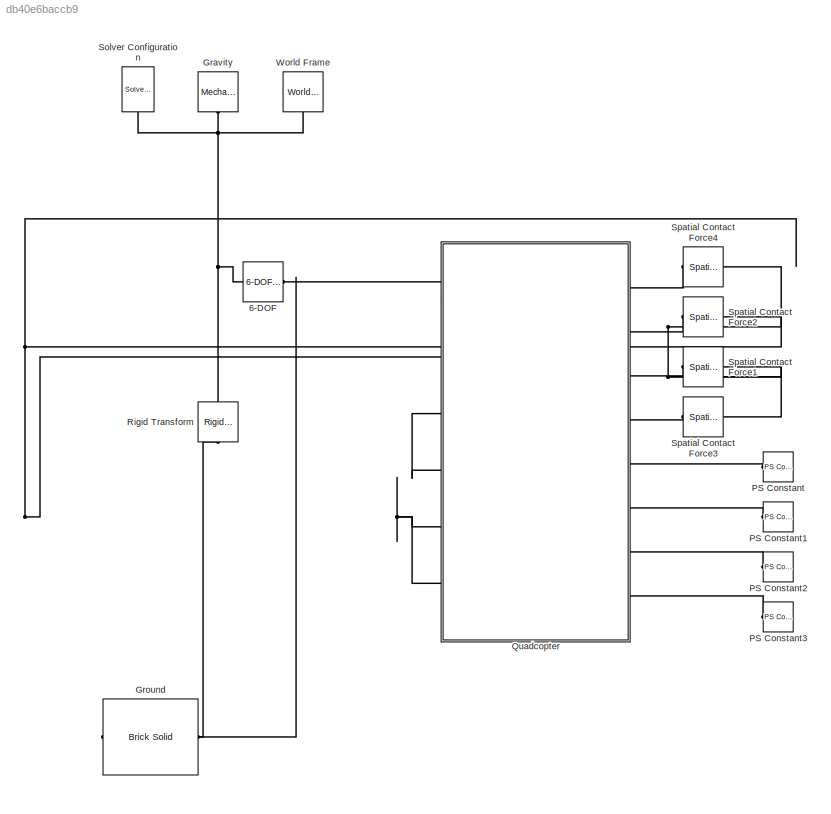
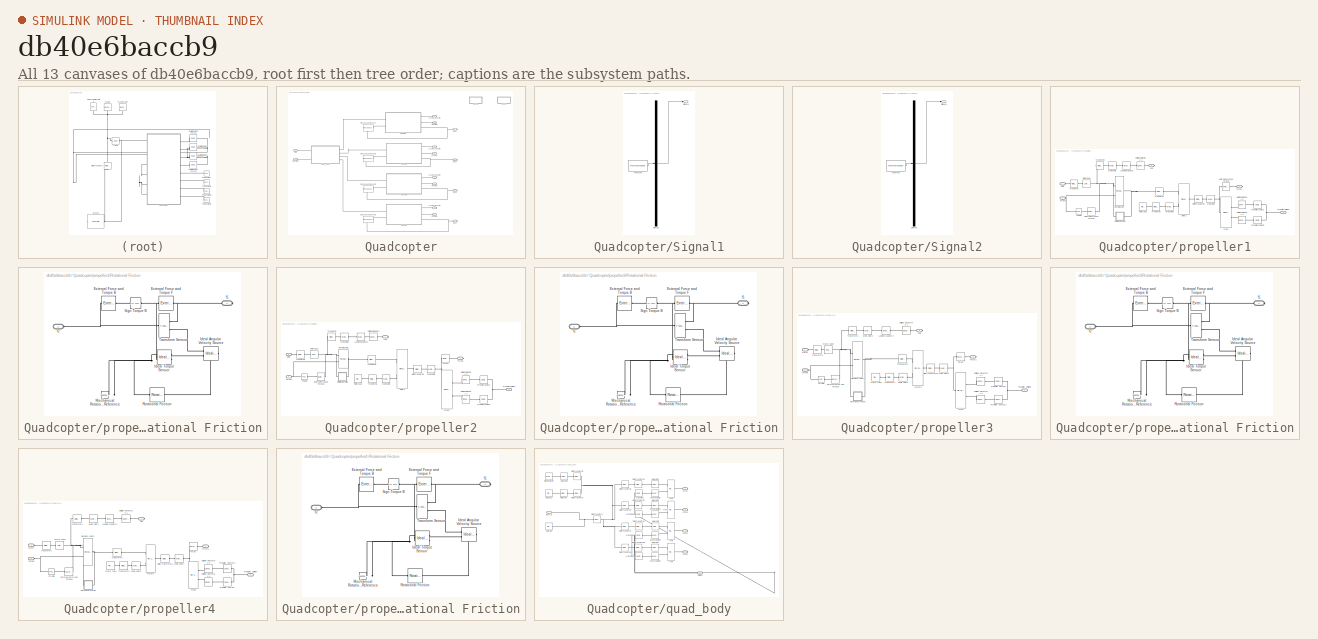
[diagram: thumbnail index - all 13 canvases of the model, root first then tree order]
MODEL slx_db40e6baccb9
KIND model
CONFIG AbsTol = auto
CONFIG EnableMultiTasking = off
CONFIG FixedStep = auto
CONFIG InitFcn = Vdc = 48;
CONFIG MaxStep = auto
CONFIG MinStep = auto
CONFIG RelTol = 1e-4
CONFIG SampleTimeConstraint = Unconstrained
CONFIG Solver = VariableStepAuto
CONFIG SolverName = VariableStepAuto
CONFIG StartTime = 0.0
CONFIG StopTime = 10
BLOCK [Reference] 6-DOF  REF=sm_lib/Joints/6-DOF Joint
  Ports = [0, 0, 0, 0, 0, 1, 1]
  SourceBlock = sm_lib/Joints/6-DOF Joint
  SourceProductBaseCode = MS
  SourceProductName = Simscape Multibody
  SourceType = 6-DOF Joint
BLOCK [Reference] Gravity  REF=sm_lib/Utilities/Mechanism
Configuration
  Ports = [0, 0, 0, 0, 0, 0, 1]
  SourceBlock = sm_lib/Utilities/Mechanism\nConfiguration
  SourceProductBaseCode = MS
  SourceProductName = Simscape Multibody
  SourceType = Mechanism\nConfiguration
BLOCK [Reference] Ground  REF=sm_lib/Body Elements/Brick Solid
  Ports = [0, 0, 0, 0, 0, 1, 1]
  SourceBlock = sm_lib/Body Elements/Brick Solid
  SourceProductBaseCode = MS
  SourceProductName = Simscape Multibody
  SourceType = Brick Solid
BLOCK [Reference] PS Constant  REF=fl_lib/Physical Signals/Sources/PS Constant
  Ports = [0, 0, 0, 0, 0, 0, 1]
  SourceBlock = fl_lib/Physical Signals/Sources/PS Constant
  SourceProductBaseCode = SS
  SourceProductName = Simscape
  SourceType = PS Constant
BLOCK [Reference] PS Constant1  REF=fl_lib/Physical Signals/Sources/PS Constant
  Ports = [0, 0, 0, 0, 0, 0, 1]
  SourceBlock = fl_lib/Physical Signals/Sources/PS Constant
  SourceProductBaseCode = SS
  SourceProductName = Simscape
  SourceType = PS Constant
BLOCK [Reference] PS Constant2  REF=fl_lib/Physical Signals/Sources/PS Constant
  Ports = [0, 0, 0, 0, 0, 0, 1]
  SourceBlock = fl_lib/Physical Signals/Sources/PS Constant
  SourceProductBaseCode = SS
  SourceProductName = Simscape
  SourceType = PS Constant
BLOCK [Reference] PS Constant3  REF=fl_lib/Physical Signals/Sources/PS Constant
  Ports = [0, 0, 0, 0, 0, 0, 1]
  SourceBlock = fl_lib/Physical Signals/Sources/PS Constant
  SourceProductBaseCode = SS
  SourceProductName = Simscape
  SourceType = PS Constant
BLOCK [SubSystem] Quadcopter
  Ports = [0, 0, 0, 0, 0, 6, 8]
  RequestExecContextInheritance = off
BLOCK [PMIOPort] Quadcopter/Arm Collision
  Port = 10
  Side = Left
BLOCK [PMIOPort] Quadcopter/Landing Support1 
  Side = Right
BLOCK [PMIOPort] Quadcopter/Landing Support2
  Port = 2
  Side = Right
BLOCK [PMIOPort] Quadcopter/Landing Support3 
  Port = 4
  Side = Right
BLOCK [PMIOPort] Quadcopter/Landing Support4
  Port = 5
  Side = Right
BLOCK [PMIOPort] Quadcopter/Propeller1
  Port = 11
  Side = Left
BLOCK [PMIOPort] Quadcopter/Propeller2
  Port = 12
  Side = Left
BLOCK [PMIOPort] Quadcopter/Propeller3
  Port = 13
  Side = Left
BLOCK [PMIOPort] Quadcopter/Propeller4
  Port = 14
  Side = Left
BLOCK [SubSystem] Quadcopter/Signal1
  ClipboardFcn = sigbuilder_block('clipboard');
  CloseFcn = sigbuilder_block('close');
  Commented = on
  ContinueFcn = sigbuilder_block('continue');
  CopyFcn = sigbuilder_block('copy');
  DeleteFcn = sigbuilder_block('delete');
  LoadFcn = sigbuilder_block('load');
  MaskHideContents = on
  ModelCloseFcn = sigbuilder_block('modelClose');
  NameChangeFcn = sigbuilder_block('namechange');
  OpenFcn = sigbuilder_block('open',[324.75 109.5 759 498 ]);
  PauseFcn = sigbuilder_block('pause');
  Ports = [0, 1]
  PreSaveFcn = sigbuilder_block('preSave');
  RequestExecContextInheritance = off
  StartFcn = sigbuilder_block('start');
  StopFcn = sigbuilder_block('stop');
  Tag = STV Subsys
BLOCK [Demux] Quadcopter/Signal1/Demux
  Outputs = 1
  Ports = [1, 1]
  Tag = STV Demux
BLOCK [FromWorkspace] Quadcopter/Signal1/FromWs
  SampleTime = 0
  Tag = STV FromWs
  VariableName = tuvar
  ZeroCross = on
BLOCK [Outport] Quadcopter/Signal1/Signal 1
  IconDisplay = Port number
  Tag = STV Outport
  VectorParamsAs1DForOutWhenUnconnected = off
BLOCK [SubSystem] Quadcopter/Signal2
  ClipboardFcn = sigbuilder_block('clipboard');
  CloseFcn = sigbuilder_block('close');
  Commented = on
  ContinueFcn = sigbuilder_block('continue');
  CopyFcn = sigbuilder_block('copy');
  DeleteFcn = sigbuilder_block('delete');
  LoadFcn = sigbuilder_block('load');
  MaskHideContents = on
  ModelCloseFcn = sigbuilder_block('modelClose');
  NameChangeFcn = sigbuilder_block('namechange');
  OpenFcn = sigbuilder_block('open',[324.75 109.5 759 498 ]);
  PauseFcn = sigbuilder_block('pause');
  Ports = [0, 1]
  PreSaveFcn = sigbuilder_block('preSave');
  RequestExecContextInheritance = off
  StartFcn = sigbuilder_block('start');
  StopFcn = sigbuilder_block('stop');
  Tag = STV Subsys
BLOCK [Demux] Quadcopter/Signal2/Demux
  Outputs = 1
  Ports = [1, 1]
  Tag = STV Demux
BLOCK [FromWorkspace] Quadcopter/Signal2/FromWs
  SampleTime = 0
  Tag = STV FromWs
  VariableName = tuvar
  ZeroCross = on
BLOCK [Outport] Quadcopter/Signal2/Signal 1
  IconDisplay = Port number
  Tag = STV Outport
  VectorParamsAs1DForOutWhenUnconnected = off
BLOCK [SimscapeComponentBlock] Quadcopter/Simscape Component
  ClassName = TorqueThrustCharacteristic
  ComponentPath = TorqueThrustCharacteristic
  ComponentVariantNames = TorqueThrustCharacteristic
  ComponentVariants = TorqueThrustCharacteristic
  CopyFcn = simscape.engine.sli.internal.componentblockcallback(gcbh,'COPY')
  InternalSimscapePortConfiguration = {"Bottom":[],"Left":[{"id":"thrust","label":"thrust","type":"input"}],"Right":[{"id":"torque","label":"torque","type":"output"}],"Top":[]}
  MaskType = TorqueThrustCharacteristic
  Ports = [0, 0, 0, 0, 0, 1, 1]
  PreCopyFcn = simscape.engine.sli.internal.componentblockcallback(gcbh,'PRECOPY')
  PreDeleteFcn = simscape.engine.sli.internal.componentblockcallback(gcbh,'PREDELETE')
  SchemaVersion = 1
  SourceFile = TorqueThrustCharacteristic
  c1 = -0.01035
  c1_conf = compiletime
  c1_unit = m/N
  c2 = 0.02868*8
  c2_conf = compiletime
  c2_unit = m
  rotorDirection = RotorDirection.Clockwise
  rotorDirection_conf = compiletime
  rotorDirection_unit = 1
BLOCK [SimscapeComponentBlock] Quadcopter/Simscape Component1
  ClassName = TorqueThrustCharacteristic
  ComponentPath = TorqueThrustCharacteristic
  ComponentVariantNames = TorqueThrustCharacteristic
  ComponentVariants = TorqueThrustCharacteristic
  CopyFcn = simscape.engine.sli.internal.componentblockcallback(gcbh,'COPY')
  InternalSimscapePortConfiguration = {"Bottom":[],"Left":[{"id":"thrust","label":"thrust","type":"input"}],"Right":[{"id":"torque","label":"torque","type":"output"}],"Top":[]}
  MaskType = TorqueThrustCharacteristic
  Ports = [0, 0, 0, 0, 0, 1, 1]
  PreCopyFcn = simscape.engine.sli.internal.componentblockcallback(gcbh,'PRECOPY')
  PreDeleteFcn = simscape.engine.sli.internal.componentblockcallback(gcbh,'PREDELETE')
  SchemaVersion = 1
  SourceFile = TorqueThrustCharacteristic
  c1 = -0.01035*1
  c1_conf = compiletime
  c1_unit = m/N
  c2 = 0.02868*8
  c2_conf = compiletime
  c2_unit = m
  rotorDirection = RotorDirection.Anticlockwise
  rotorDirection_conf = compiletime
  rotorDirection_unit = 1
BLOCK [SimscapeComponentBlock] Quadcopter/Simscape Component2
  ClassName = TorqueThrustCharacteristic
  ComponentPath = TorqueThrustCharacteristic
  ComponentVariantNames = TorqueThrustCharacteristic
  ComponentVariants = TorqueThrustCharacteristic
  CopyFcn = simscape.engine.sli.internal.componentblockcallback(gcbh,'COPY')
  InternalSimscapePortConfiguration = {"Bottom":[],"Left":[{"id":"thrust","label":"thrust","type":"input"}],"Right":[{"id":"torque","label":"torque","type":"output"}],"Top":[]}
  MaskType = TorqueThrustCharacteristic
  Ports = [0, 0, 0, 0, 0, 1, 1]
  PreCopyFcn = simscape.engine.sli.internal.componentblockcallback(gcbh,'PRECOPY')
  PreDeleteFcn = simscape.engine.sli.internal.componentblockcallback(gcbh,'PREDELETE')
  SchemaVersion = 1
  SourceFile = TorqueThrustCharacteristic
  c1 = -0.01035*1
  c1_conf = compiletime
  c1_unit = m/N
  c2 = 0.02868*8
  c2_conf = compiletime
  c2_unit = m
  rotorDirection = RotorDirection.Anticlockwise
  rotorDirection_conf = compiletime
  rotorDirection_unit = 1
BLOCK [SimscapeComponentBlock] Quadcopter/Simscape Component3
  ClassName = TorqueThrustCharacteristic
  ComponentPath = TorqueThrustCharacteristic
  ComponentVariantNames = TorqueThrustCharacteristic
  ComponentVariants = TorqueThrustCharacteristic
  CopyFcn = simscape.engine.sli.internal.componentblockcallback(gcbh,'COPY')
  InternalSimscapePortConfiguration = {"Bottom":[],"Left":[{"id":"thrust","label":"thrust","type":"input"}],"Right":[{"id":"torque","label":"torque","type":"output"}],"Top":[]}
  MaskType = TorqueThrustCharacteristic
  Ports = [0, 0, 0, 0, 0, 1, 1]
  PreCopyFcn = simscape.engine.sli.internal.componentblockcallback(gcbh,'PRECOPY')
  PreDeleteFcn = simscape.engine.sli.internal.componentblockcallback(gcbh,'PREDELETE')
  SchemaVersion = 1
  SourceFile = TorqueThrustCharacteristic
  c1 = -0.01035*1
  c1_conf = compiletime
  c1_unit = m/N
  c2 = 0.02868*8
  c2_conf = compiletime
  c2_unit = m
  rotorDirection = RotorDirection.Clockwise
  rotorDirection_conf = compiletime
  rotorDirection_unit = 1
BLOCK [PMIOPort] Quadcopter/arm
  Port = 3
  Side = Left
BLOCK [PMIOPort] Quadcopter/prop1
  Port = 6
  Side = Right
BLOCK [PMIOPort] Quadcopter/prop2
  Port = 7
  Side = Right
BLOCK [PMIOPort] Quadcopter/prop3
  Port = 8
  Side = Right
BLOCK [PMIOPort] Quadcopter/prop4
  Port = 9
  Side = Right
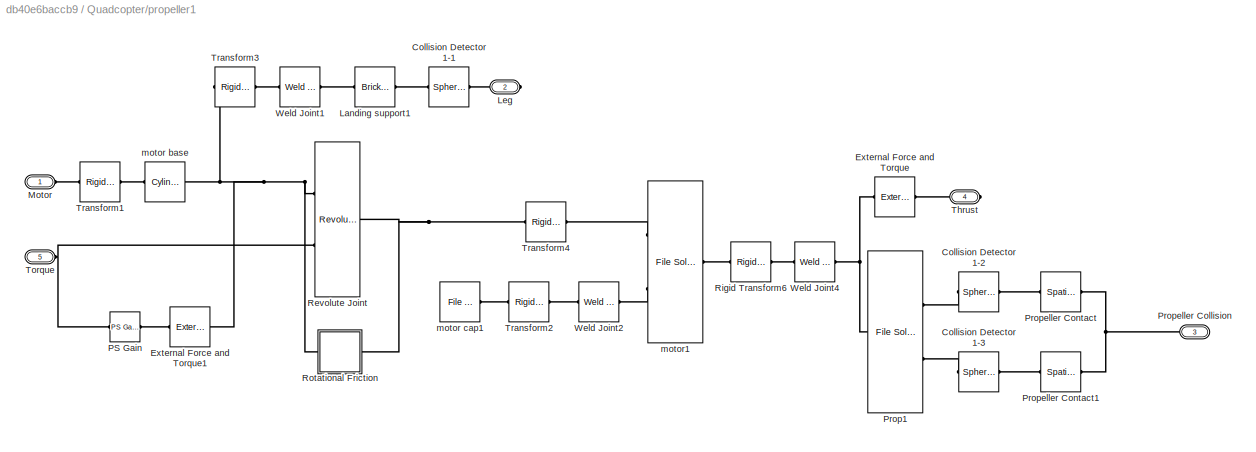
BLOCK [SubSystem] Quadcopter/propeller1
  Ports = [0, 0, 0, 0, 0, 2, 3]
  RequestExecContextInheritance = off
BLOCK [Reference] Quadcopter/propeller1/Collision Detector 1-1  REF=sm_lib/Body Elements/Spherical Solid
  Ports = [0, 0, 0, 0, 0, 1, 1]
  SourceBlock = sm_lib/Body Elements/Spherical Solid
  SourceProductBaseCode = MS
  SourceProductName = Simscape Multibody
  SourceType = Spherical Solid
BLOCK [Reference] Quadcopter/propeller1/Collision Detector 1-2  REF=sm_lib/Body Elements/Spherical Solid
  Ports = [0, 0, 0, 0, 0, 1, 1]
  SourceBlock = sm_lib/Body Elements/Spherical Solid
  SourceProductBaseCode = MS
  SourceProductName = Simscape Multibody
  SourceType = Spherical Solid
BLOCK [Reference] Quadcopter/propeller1/Collision Detector 1-3  REF=sm_lib/Body Elements/Spherical Solid
  Ports = [0, 0, 0, 0, 0, 1, 1]
  SourceBlock = sm_lib/Body Elements/Spherical Solid
  SourceProductBaseCode = MS
  SourceProductName = Simscape Multibody
  SourceType = Spherical Solid
BLOCK [Reference] Quadcopter/propeller1/External Force and Torque  REF=sm_lib/Forces and
Torques/External Force
and Torque
  Ports = [0, 0, 0, 0, 0, 1, 1]
  SourceBlock = sm_lib/Forces and\nTorques/External Force\nand Torque
  SourceProductBaseCode = MS
  SourceProductName = Simscape Multibody
  SourceType = External Force\nand Torque
BLOCK [Reference] Quadcopter/propeller1/External Force and Torque1  REF=sm_lib/Forces and
Torques/External Force
and Torque
  Ports = [0, 0, 0, 0, 0, 1, 1]
  SourceBlock = sm_lib/Forces and\nTorques/External Force\nand Torque
  SourceProductBaseCode = MS
  SourceProductName = Simscape Multibody
  SourceType = External Force\nand Torque
BLOCK [Reference] Quadcopter/propeller1/Landing support1  REF=sm_lib/Body Elements/Brick Solid
  Ports = [0, 0, 0, 0, 0, 1, 1]
  SourceBlock = sm_lib/Body Elements/Brick Solid
  SourceProductBaseCode = MS
  SourceProductName = Simscape Multibody
  SourceType = Brick Solid
BLOCK [PMIOPort] Quadcopter/propeller1/Leg
  Port = 2
  Side = Right
BLOCK [PMIOPort] Quadcopter/propeller1/Motor
  Side = Left
BLOCK [Reference] Quadcopter/propeller1/PS Gain  REF=fl_lib/Physical Signals/Functions/PS Gain
  Ports = [0, 0, 0, 0, 0, 1, 1]
  SourceBlock = fl_lib/Physical Signals/Functions/PS Gain
  SourceProductBaseCode = SS
  SourceProductName = Simscape
  SourceType = PS Gain
BLOCK [Reference] Quadcopter/propeller1/Prop1  REF=sm_lib/Body Elements/File Solid
  Ports = [0, 0, 0, 0, 0, 2, 1]
  SourceBlock = sm_lib/Body Elements/File Solid
  SourceProductBaseCode = MS
  SourceProductName = Simscape Multibody
  SourceType = File Solid
BLOCK [PMIOPort] Quadcopter/propeller1/Propeller Collision
  Port = 3
  Side = Right
BLOCK [Reference] Quadcopter/propeller1/Propeller Contact  REF=sm_lib/Forces and
Torques/Spatial
Contact Force
  Ports = [0, 0, 0, 0, 0, 1, 1]
  SourceBlock = sm_lib/Forces and\nTorques/Spatial\nContact Force
  SourceProductBaseCode = MS
  SourceProductName = Simscape Multibody
  SourceType = Spatial\nContact Force
BLOCK [Reference] Quadcopter/propeller1/Propeller Contact1  REF=sm_lib/Forces and
Torques/Spatial
Contact Force
  Ports = [0, 0, 0, 0, 0, 1, 1]
  SourceBlock = sm_lib/Forces and\nTorques/Spatial\nContact Force
  SourceProductBaseCode = MS
  SourceProductName = Simscape Multibody
  SourceType = Spatial\nContact Force
BLOCK [Reference] Quadcopter/propeller1/Revolute Joint  REF=sm_lib/Joints/Revolute Joint
  Ports = [0, 0, 0, 0, 0, 2, 1]
  SourceBlock = sm_lib/Joints/Revolute Joint
  SourceProductBaseCode = MS
  SourceProductName = Simscape Multibody
  SourceType = Revolute Joint
BLOCK [Reference] Quadcopter/propeller1/Rigid Transform6  REF=sm_lib/Frames and
Transforms/Rigid
Transform
  Ports = [0, 0, 0, 0, 0, 1, 1]
  SourceBlock = sm_lib/Frames and\nTransforms/Rigid\nTransform
  SourceProductBaseCode = MS
  SourceProductName = Simscape Multibody
  SourceType = Rigid\nTransform
BLOCK [SubSystem] Quadcopter/propeller1/Rotational Friction
  Commented = on
  Ports = [0, 0, 0, 0, 0, 1, 1]
  RequestExecContextInheritance = off
BLOCK [Reference] Quadcopter/propeller1/Rotational Friction/External Force and Torque B  REF=sm_lib/Forces and
Torques/External Force
and Torque
  Ports = [0, 0, 0, 0, 0, 1, 1]
  SourceBlock = sm_lib/Forces and\nTorques/External Force\nand Torque
  SourceProductBaseCode = MS
  SourceProductName = Simscape Multibody
  SourceType = External Force\nand Torque
BLOCK [Reference] Quadcopter/propeller1/Rotational Friction/External Force and Torque F  REF=sm_lib/Forces and
Torques/External Force
and Torque
  Ports = [0, 0, 0, 0, 0, 1, 1]
  SourceBlock = sm_lib/Forces and\nTorques/External Force\nand Torque
  SourceProductBaseCode = MS
  SourceProductName = Simscape Multibody
  SourceType = External Force\nand Torque
BLOCK [Reference] Quadcopter/propeller1/Rotational Friction/Ideal Angular Velocity Source  REF=fl_lib/Mechanical/Mechanical Sources/Ideal Angular
Velocity Source
  Ports = [0, 0, 0, 0, 0, 1, 2]
  SourceBlock = fl_lib/Mechanical/Mechanical Sources/Ideal Angular\nVelocity Source
  SourceProductBaseCode = SS
  SourceProductName = Simscape
  SourceType = Ideal Angular\nVelocity Source
BLOCK [Reference] Quadcopter/propeller1/Rotational Friction/Ideal Torque Sensor  REF=fl_lib/Mechanical/Mechanical Sensors/Ideal Torque Sensor
  Ports = [0, 0, 0, 0, 0, 1, 2]
  SourceBlock = fl_lib/Mechanical/Mechanical Sensors/Ideal Torque Sensor
  SourceProductBaseCode = SS
  SourceProductName = Simscape
  SourceType = Ideal Torque Sensor
BLOCK [Reference] Quadcopter/propeller1/Rotational Friction/Mechanical Rotational Reference  REF=fl_lib/Mechanical/Rotational Elements/Mechanical
Rotational Reference
  Ports = [0, 0, 0, 0, 0, 1]
  SourceBlock = fl_lib/Mechanical/Rotational Elements/Mechanical\nRotational Reference
  SourceProductBaseCode = SS
  SourceProductName = Simscape
  SourceType = Mechanical\nRotational Reference
BLOCK [Reference] Quadcopter/propeller1/Rotational Friction/Rotational Friction  REF=fl_lib/Mechanical/Rotational Elements/Rotational Friction
  Ports = [0, 0, 0, 0, 0, 1, 1]
  SourceBlock = fl_lib/Mechanical/Rotational Elements/Rotational Friction
  SourceProductBaseCode = SS
  SourceProductName = Simscape
  SourceType = Rotational Friction
BLOCK [Reference] Quadcopter/propeller1/Rotational Friction/Sign Torque B  REF=fl_lib/Physical Signals/Functions/PS Gain
  Ports = [0, 0, 0, 0, 0, 1, 1]
  SourceBlock = fl_lib/Physical Signals/Functions/PS Gain
  SourceProductBaseCode = SS
  SourceProductName = Simscape
  SourceType = PS Gain
BLOCK [Reference] Quadcopter/propeller1/Rotational Friction/Transform Sensor  REF=sm_lib/Frames and
Transforms/Transform
Sensor
  Ports = [0, 0, 0, 0, 0, 1, 2]
  SourceBlock = sm_lib/Frames and\nTransforms/Transform\nSensor
  SourceProductBaseCode = MS
  SourceProductName = Simscape Multibody
  SourceType = Transform\nSensor
BLOCK [PMIOPort] Quadcopter/propeller1/Rotational Friction/f1
  Side = Right
BLOCK [PMIOPort] Quadcopter/propeller1/Rotational Friction/f2
  Port = 2
  Side = Left
BLOCK [PMIOPort] Quadcopter/propeller1/Thrust
  Port = 4
  Side = Right
BLOCK [PMIOPort] Quadcopter/propeller1/Torque
  Port = 5
  Side = Left
BLOCK [Reference] Quadcopter/propeller1/Transform1  REF=sm_lib/Frames and
Transforms/Rigid
Transform
  Ports = [0, 0, 0, 0, 0, 1, 1]
  SourceBlock = sm_lib/Frames and\nTransforms/Rigid\nTransform
  SourceProductBaseCode = MS
  SourceProductName = Simscape Multibody
  SourceType = Rigid\nTransform
BLOCK [Reference] Quadcopter/propeller1/Transform2  REF=sm_lib/Frames and
Transforms/Rigid
Transform
  Ports = [0, 0, 0, 0, 0, 1, 1]
  SourceBlock = sm_lib/Frames and\nTransforms/Rigid\nTransform
  SourceProductBaseCode = MS
  SourceProductName = Simscape Multibody
  SourceType = Rigid\nTransform
BLOCK [Reference] Quadcopter/propeller1/Transform3  REF=sm_lib/Frames and
Transforms/Rigid
Transform
  Ports = [0, 0, 0, 0, 0, 1, 1]
  SourceBlock = sm_lib/Frames and\nTransforms/Rigid\nTransform
  SourceProductBaseCode = MS
  SourceProductName = Simscape Multibody
  SourceType = Rigid\nTransform
BLOCK [Reference] Quadcopter/propeller1/Transform4  REF=sm_lib/Frames and
Transforms/Rigid
Transform
  Ports = [0, 0, 0, 0, 0, 1, 1]
  SourceBlock = sm_lib/Frames and\nTransforms/Rigid\nTransform
  SourceProductBaseCode = MS
  SourceProductName = Simscape Multibody
  SourceType = Rigid\nTransform
BLOCK [Reference] Quadcopter/propeller1/Weld Joint1  REF=sm_lib/Joints/Weld Joint
  Ports = [0, 0, 0, 0, 0, 1, 1]
  SourceBlock = sm_lib/Joints/Weld Joint
  SourceProductBaseCode = MS
  SourceProductName = Simscape Multibody
  SourceType = Weld Joint
BLOCK [Reference] Quadcopter/propeller1/Weld Joint2  REF=sm_lib/Joints/Weld Joint
  Ports = [0, 0, 0, 0, 0, 1, 1]
  SourceBlock = sm_lib/Joints/Weld Joint
  SourceProductBaseCode = MS
  SourceProductName = Simscape Multibody
  SourceType = Weld Joint
BLOCK [Reference] Quadcopter/propeller1/Weld Joint4  REF=sm_lib/Joints/Weld Joint
  Ports = [0, 0, 0, 0, 0, 1, 1]
  SourceBlock = sm_lib/Joints/Weld Joint
  SourceProductBaseCode = MS
  SourceProductName = Simscape Multibody
  SourceType = Weld Joint
BLOCK [Reference] Quadcopter/propeller1/motor base  REF=sm_lib/Body Elements/Cylindrical Solid
  Ports = [0, 0, 0, 0, 0, 1, 1]
  SourceBlock = sm_lib/Body Elements/Cylindrical Solid
  SourceProductBaseCode = MS
  SourceProductName = Simscape Multibody
  SourceType = Cylindrical Solid
BLOCK [Reference] Quadcopter/propeller1/motor cap1  REF=sm_lib/Body Elements/File Solid
  Ports = [0, 0, 0, 0, 0, 0, 1]
  SourceBlock = sm_lib/Body Elements/File Solid
  SourceProductBaseCode = MS
  SourceProductName = Simscape Multibody
  SourceType = File Solid
BLOCK [Reference] Quadcopter/propeller1/motor1  REF=sm_lib/Body Elements/File Solid
  Ports = [0, 0, 0, 0, 0, 2, 1]
  SourceBlock = sm_lib/Body Elements/File Solid
  SourceProductBaseCode = MS
  SourceProductName = Simscape Multibody
  SourceType = File Solid
BLOCK [SubSystem] Quadcopter/propeller2
  Ports = [0, 0, 0, 0, 0, 2, 3]
  RequestExecContextInheritance = off
BLOCK [Reference] Quadcopter/propeller2/Collision Detector 1-1  REF=sm_lib/Body Elements/Spherical Solid
  Ports = [0, 0, 0, 0, 0, 1, 1]
  SourceBlock = sm_lib/Body Elements/Spherical Solid
  SourceProductBaseCode = MS
  SourceProductName = Simscape Multibody
  SourceType = Spherical Solid
BLOCK [Reference] Quadcopter/propeller2/Collision Detector 1-3  REF=sm_lib/Body Elements/Spherical Solid
  Ports = [0, 0, 0, 0, 0, 1, 1]
  SourceBlock = sm_lib/Body Elements/Spherical Solid
  SourceProductBaseCode = MS
  SourceProductName = Simscape Multibody
  SourceType = Spherical Solid
BLOCK [Reference] Quadcopter/propeller2/Collision Detector 2  REF=sm_lib/Body Elements/Spherical Solid
  Ports = [0, 0, 0, 0, 0, 1, 1]
  SourceBlock = sm_lib/Body Elements/Spherical Solid
  SourceProductBaseCode = MS
  SourceProductName = Simscape Multibody
  SourceType = Spherical Solid
BLOCK [Reference] Quadcopter/propeller2/External Force and Torque1  REF=sm_lib/Forces and
Torques/External Force
and Torque
  Ports = [0, 0, 0, 0, 0, 1, 1]
  SourceBlock = sm_lib/Forces and\nTorques/External Force\nand Torque
  SourceProductBaseCode = MS
  SourceProductName = Simscape Multibody
  SourceType = External Force\nand Torque
BLOCK [Reference] Quadcopter/propeller2/Landing support2  REF=sm_lib/Body Elements/Brick Solid
  Ports = [0, 0, 0, 0, 0, 1, 1]
  SourceBlock = sm_lib/Body Elements/Brick Solid
  SourceProductBaseCode = MS
  SourceProductName = Simscape Multibody
  SourceType = Brick Solid
BLOCK [PMIOPort] Quadcopter/propeller2/Leg
  Port = 2
  Side = Right
BLOCK [PMIOPort] Quadcopter/propeller2/Motor
  Side = Left
BLOCK [Reference] Quadcopter/propeller2/PS Gain  REF=fl_lib/Physical Signals/Functions/PS Gain
  Ports = [0, 0, 0, 0, 0, 1, 1]
  SourceBlock = fl_lib/Physical Signals/Functions/PS Gain
  SourceProductBaseCode = SS
  SourceProductName = Simscape
  SourceType = PS Gain
BLOCK [Reference] Quadcopter/propeller2/Prop2  REF=sm_lib/Body Elements/File Solid
  Ports = [0, 0, 0, 0, 0, 2, 1]
  SourceBlock = sm_lib/Body Elements/File Solid
  SourceProductBaseCode = MS
  SourceProductName = Simscape Multibody
  SourceType = File Solid
BLOCK [PMIOPort] Quadcopter/propeller2/Propeller Collision
  Port = 3
  Side = Right
BLOCK [Reference] Quadcopter/propeller2/Propeller Contact  REF=sm_lib/Forces and
Torques/Spatial
Contact Force
  Ports = [0, 0, 0, 0, 0, 1, 1]
  SourceBlock = sm_lib/Forces and\nTorques/Spatial\nContact Force
  SourceProductBaseCode = MS
  SourceProductName = Simscape Multibody
  SourceType = Spatial\nContact Force
BLOCK [Reference] Quadcopter/propeller2/Propeller Contact1  REF=sm_lib/Forces and
Torques/Spatial
Contact Force
  Ports = [0, 0, 0, 0, 0, 1, 1]
  SourceBlock = sm_lib/Forces and\nTorques/Spatial\nContact Force
  SourceProductBaseCode = MS
  SourceProductName = Simscape Multibody
  SourceType = Spatial\nContact Force
BLOCK [Reference] Quadcopter/propeller2/Revolute Joint1  REF=sm_lib/Joints/Revolute Joint
  Ports = [0, 0, 0, 0, 0, 2, 1]
  SourceBlock = sm_lib/Joints/Revolute Joint
  SourceProductBaseCode = MS
  SourceProductName = Simscape Multibody
  SourceType = Revolute Joint
BLOCK [Reference] Quadcopter/propeller2/Rigid Transform6  REF=sm_lib/Frames and
Transforms/Rigid
Transform
  Ports = [0, 0, 0, 0, 0, 1, 1]
  SourceBlock = sm_lib/Frames and\nTransforms/Rigid\nTransform
  SourceProductBaseCode = MS
  SourceProductName = Simscape Multibody
  SourceType = Rigid\nTransform
BLOCK [SubSystem] Quadcopter/propeller2/Rotational Friction
  Commented = on
  Ports = [0, 0, 0, 0, 0, 1, 1]
  RequestExecContextInheritance = off
BLOCK [Reference] Quadcopter/propeller2/Rotational Friction/External Force and Torque B  REF=sm_lib/Forces and
Torques/External Force
and Torque
  Ports = [0, 0, 0, 0, 0, 1, 1]
  SourceBlock = sm_lib/Forces and\nTorques/External Force\nand Torque
  SourceProductBaseCode = MS
  SourceProductName = Simscape Multibody
  SourceType = External Force\nand Torque
BLOCK [Reference] Quadcopter/propeller2/Rotational Friction/External Force and Torque F  REF=sm_lib/Forces and
Torques/External Force
and Torque
  Ports = [0, 0, 0, 0, 0, 1, 1]
  SourceBlock = sm_lib/Forces and\nTorques/External Force\nand Torque
  SourceProductBaseCode = MS
  SourceProductName = Simscape Multibody
  SourceType = External Force\nand Torque
BLOCK [Reference] Quadcopter/propeller2/Rotational Friction/Ideal Angular Velocity Source  REF=fl_lib/Mechanical/Mechanical Sources/Ideal Angular
Velocity Source
  Ports = [0, 0, 0, 0, 0, 1, 2]
  SourceBlock = fl_lib/Mechanical/Mechanical Sources/Ideal Angular\nVelocity Source
  SourceProductBaseCode = SS
  SourceProductName = Simscape
  SourceType = Ideal Angular\nVelocity Source
BLOCK [Reference] Quadcopter/propeller2/Rotational Friction/Ideal Torque Sensor  REF=fl_lib/Mechanical/Mechanical Sensors/Ideal Torque Sensor
  Ports = [0, 0, 0, 0, 0, 1, 2]
  SourceBlock = fl_lib/Mechanical/Mechanical Sensors/Ideal Torque Sensor
  SourceProductBaseCode = SS
  SourceProductName = Simscape
  SourceType = Ideal Torque Sensor
BLOCK [Reference] Quadcopter/propeller2/Rotational Friction/Mechanical Rotational Reference  REF=fl_lib/Mechanical/Rotational Elements/Mechanical
Rotational Reference
  Ports = [0, 0, 0, 0, 0, 1]
  SourceBlock = fl_lib/Mechanical/Rotational Elements/Mechanical\nRotational Reference
  SourceProductBaseCode = SS
  SourceProductName = Simscape
  SourceType = Mechanical\nRotational Reference
BLOCK [Reference] Quadcopter/propeller2/Rotational Friction/Rotational Friction  REF=fl_lib/Mechanical/Rotational Elements/Rotational Friction
  Ports = [0, 0, 0, 0, 0, 1, 1]
  SourceBlock = fl_lib/Mechanical/Rotational Elements/Rotational Friction
  SourceProductBaseCode = SS
  SourceProductName = Simscape
  SourceType = Rotational Friction
BLOCK [Reference] Quadcopter/propeller2/Rotational Friction/Sign Torque B  REF=fl_lib/Physical Signals/Functions/PS Gain
  Ports = [0, 0, 0, 0, 0, 1, 1]
  SourceBlock = fl_lib/Physical Signals/Functions/PS Gain
  SourceProductBaseCode = SS
  SourceProductName = Simscape
  SourceType = PS Gain
BLOCK [Reference] Quadcopter/propeller2/Rotational Friction/Transform Sensor  REF=sm_lib/Frames and
Transforms/Transform
Sensor
  Ports = [0, 0, 0, 0, 0, 1, 2]
  SourceBlock = sm_lib/Frames and\nTransforms/Transform\nSensor
  SourceProductBaseCode = MS
  SourceProductName = Simscape Multibody
  SourceType = Transform\nSensor
BLOCK [PMIOPort] Quadcopter/propeller2/Rotational Friction/f1
  Side = Right
BLOCK [PMIOPort] Quadcopter/propeller2/Rotational Friction/f2
  Port = 2
  Side = Left
BLOCK [Reference] Quadcopter/propeller2/Thrust  REF=sm_lib/Forces and
Torques/External Force
and Torque
  Ports = [0, 0, 0, 0, 0, 1, 1]
  SourceBlock = sm_lib/Forces and\nTorques/External Force\nand Torque
  SourceProductBaseCode = MS
  SourceProductName = Simscape Multibody
  SourceType = External Force\nand Torque
BLOCK [PMIOPort] Quadcopter/propeller2/Thrust1
  Port = 4
  Side = Right
BLOCK [PMIOPort] Quadcopter/propeller2/Torque
  Port = 5
  Side = Left
BLOCK [Reference] Quadcopter/propeller2/Transform1  REF=sm_lib/Frames and
Transforms/Rigid
Transform
  Ports = [0, 0, 0, 0, 0, 1, 1]
  SourceBlock = sm_lib/Frames and\nTransforms/Rigid\nTransform
  SourceProductBaseCode = MS
  SourceProductName = Simscape Multibody
  SourceType = Rigid\nTransform
BLOCK [Reference] Quadcopter/propeller2/Transform2  REF=sm_lib/Frames and
Transforms/Rigid
Transform
  Ports = [0, 0, 0, 0, 0, 1, 1]
  SourceBlock = sm_lib/Frames and\nTransforms/Rigid\nTransform
  SourceProductBaseCode = MS
  SourceProductName = Simscape Multibody
  SourceType = Rigid\nTransform
BLOCK [Reference] Quadcopter/propeller2/Transform3  REF=sm_lib/Frames and
Transforms/Rigid
Transform
  Ports = [0, 0, 0, 0, 0, 1, 1]
  SourceBlock = sm_lib/Frames and\nTransforms/Rigid\nTransform
  SourceProductBaseCode = MS
  SourceProductName = Simscape Multibody
  SourceType = Rigid\nTransform
BLOCK [Reference] Quadcopter/propeller2/Transform4  REF=sm_lib/Frames and
Transforms/Rigid
Transform
  Ports = [0, 0, 0, 0, 0, 1, 1]
  SourceBlock = sm_lib/Frames and\nTransforms/Rigid\nTransform
  SourceProductBaseCode = MS
  SourceProductName = Simscape Multibody
  SourceType = Rigid\nTransform
BLOCK [Reference] Quadcopter/propeller2/Weld Joint2  REF=sm_lib/Joints/Weld Joint
  Ports = [0, 0, 0, 0, 0, 1, 1]
  SourceBlock = sm_lib/Joints/Weld Joint
  SourceProductBaseCode = MS
  SourceProductName = Simscape Multibody
  SourceType = Weld Joint
BLOCK [Reference] Quadcopter/propeller2/Weld Joint3  REF=sm_lib/Joints/Weld Joint
  Ports = [0, 0, 0, 0, 0, 1, 1]
  SourceBlock = sm_lib/Joints/Weld Joint
  SourceProductBaseCode = MS
  SourceProductName = Simscape Multibody
  SourceType = Weld Joint
BLOCK [Reference] Quadcopter/propeller2/Weld Joint5  REF=sm_lib/Joints/Weld Joint
  Ports = [0, 0, 0, 0, 0, 1, 1]
  SourceBlock = sm_lib/Joints/Weld Joint
  SourceProductBaseCode = MS
  SourceProductName = Simscape Multibody
  SourceType = Weld Joint
BLOCK [Reference] Quadcopter/propeller2/motor base  REF=sm_lib/Body Elements/Cylindrical Solid
  Ports = [0, 0, 0, 0, 0, 1, 1]
  SourceBlock = sm_lib/Body Elements/Cylindrical Solid
  SourceProductBaseCode = MS
  SourceProductName = Simscape Multibody
  SourceType = Cylindrical Solid
BLOCK [Reference] Quadcopter/propeller2/motor cap2  REF=sm_lib/Body Elements/File Solid
  Ports = [0, 0, 0, 0, 0, 0, 1]
  SourceBlock = sm_lib/Body Elements/File Solid
  SourceProductBaseCode = MS
  SourceProductName = Simscape Multibody
  SourceType = File Solid
BLOCK [Reference] Quadcopter/propeller2/motor2  REF=sm_lib/Body Elements/File Solid
  Ports = [0, 0, 0, 0, 0, 2, 1]
  SourceBlock = sm_lib/Body Elements/File Solid
  SourceProductBaseCode = MS
  SourceProductName = Simscape Multibody
  SourceType = File Solid
BLOCK [SubSystem] Quadcopter/propeller3
  Ports = [0, 0, 0, 0, 0, 2, 3]
  RequestExecContextInheritance = off
BLOCK [Reference] Quadcopter/propeller3/Collision Detector 1-1  REF=sm_lib/Body Elements/Spherical Solid
  Ports = [0, 0, 0, 0, 0, 1, 1]
  SourceBlock = sm_lib/Body Elements/Spherical Solid
  SourceProductBaseCode = MS
  SourceProductName = Simscape Multibody
  SourceType = Spherical Solid
BLOCK [Reference] Quadcopter/propeller3/Collision Detector 1-3  REF=sm_lib/Body Elements/Spherical Solid
  Ports = [0, 0, 0, 0, 0, 1, 1]
  SourceBlock = sm_lib/Body Elements/Spherical Solid
  SourceProductBaseCode = MS
  SourceProductName = Simscape Multibody
  SourceType = Spherical Solid
BLOCK [Reference] Quadcopter/propeller3/Collision Detector 3-1  REF=sm_lib/Body Elements/Spherical Solid
  Ports = [0, 0, 0, 0, 0, 1, 1]
  SourceBlock = sm_lib/Body Elements/Spherical Solid
  SourceProductBaseCode = MS
  SourceProductName = Simscape Multibody
  SourceType = Spherical Solid
BLOCK [Reference] Quadcopter/propeller3/External Force and Torque1  REF=sm_lib/Forces and
Torques/External Force
and Torque
  Ports = [0, 0, 0, 0, 0, 1, 1]
  SourceBlock = sm_lib/Forces and\nTorques/External Force\nand Torque
  SourceProductBaseCode = MS
  SourceProductName = Simscape Multibody
  SourceType = External Force\nand Torque
BLOCK [Reference] Quadcopter/propeller3/Landing support3  REF=sm_lib/Body Elements/Brick Solid
  Ports = [0, 0, 0, 0, 0, 1, 1]
  SourceBlock = sm_lib/Body Elements/Brick Solid
  SourceProductBaseCode = MS
  SourceProductName = Simscape Multibody
  SourceType = Brick Solid
BLOCK [PMIOPort] Quadcopter/propeller3/Leg
  Port = 2
  Side = Right
BLOCK [PMIOPort] Quadcopter/propeller3/Motor
  Side = Left
BLOCK [Reference] Quadcopter/propeller3/PS Gain  REF=fl_lib/Physical Signals/Functions/PS Gain
  Ports = [0, 0, 0, 0, 0, 1, 1]
  SourceBlock = fl_lib/Physical Signals/Functions/PS Gain
  SourceProductBaseCode = SS
  SourceProductName = Simscape
  SourceType = PS Gain
BLOCK [Reference] Quadcopter/propeller3/Prop3   REF=sm_lib/Body Elements/File Solid
  Ports = [0, 0, 0, 0, 0, 2, 1]
  SourceBlock = sm_lib/Body Elements/File Solid
  SourceProductBaseCode = MS
  SourceProductName = Simscape Multibody
  SourceType = File Solid
BLOCK [PMIOPort] Quadcopter/propeller3/Propeller Collision
  Port = 3
  Side = Right
BLOCK [Reference] Quadcopter/propeller3/Propeller Contact  REF=sm_lib/Forces and
Torques/Spatial
Contact Force
  Ports = [0, 0, 0, 0, 0, 1, 1]
  SourceBlock = sm_lib/Forces and\nTorques/Spatial\nContact Force
  SourceProductBaseCode = MS
  SourceProductName = Simscape Multibody
  SourceType = Spatial\nContact Force
BLOCK [Reference] Quadcopter/propeller3/Propeller Contact1  REF=sm_lib/Forces and
Torques/Spatial
Contact Force
  Ports = [0, 0, 0, 0, 0, 1, 1]
  SourceBlock = sm_lib/Forces and\nTorques/Spatial\nContact Force
  SourceProductBaseCode = MS
  SourceProductName = Simscape Multibody
  SourceType = Spatial\nContact Force
BLOCK [Reference] Quadcopter/propeller3/Revolute Joint2  REF=sm_lib/Joints/Revolute Joint
  Ports = [0, 0, 0, 0, 0, 2, 1]
  SourceBlock = sm_lib/Joints/Revolute Joint
  SourceProductBaseCode = MS
  SourceProductName = Simscape Multibody
  SourceType = Revolute Joint
BLOCK [Reference] Quadcopter/propeller3/Rigid Transform6  REF=sm_lib/Frames and
Transforms/Rigid
Transform
  Ports = [0, 0, 0, 0, 0, 1, 1]
  SourceBlock = sm_lib/Frames and\nTransforms/Rigid\nTransform
  SourceProductBaseCode = MS
  SourceProductName = Simscape Multibody
  SourceType = Rigid\nTransform
BLOCK [SubSystem] Quadcopter/propeller3/Rotational Friction
  Commented = on
  Ports = [0, 0, 0, 0, 0, 1, 1]
  RequestExecContextInheritance = off
BLOCK [Reference] Quadcopter/propeller3/Rotational Friction/External Force and Torque B  REF=sm_lib/Forces and
Torques/External Force
and Torque
  Ports = [0, 0, 0, 0, 0, 1, 1]
  SourceBlock = sm_lib/Forces and\nTorques/External Force\nand Torque
  SourceProductBaseCode = MS
  SourceProductName = Simscape Multibody
  SourceType = External Force\nand Torque
BLOCK [Reference] Quadcopter/propeller3/Rotational Friction/External Force and Torque F  REF=sm_lib/Forces and
Torques/External Force
and Torque
  Ports = [0, 0, 0, 0, 0, 1, 1]
  SourceBlock = sm_lib/Forces and\nTorques/External Force\nand Torque
  SourceProductBaseCode = MS
  SourceProductName = Simscape Multibody
  SourceType = External Force\nand Torque
BLOCK [Reference] Quadcopter/propeller3/Rotational Friction/Ideal Angular Velocity Source  REF=fl_lib/Mechanical/Mechanical Sources/Ideal Angular
Velocity Source
  Ports = [0, 0, 0, 0, 0, 1, 2]
  SourceBlock = fl_lib/Mechanical/Mechanical Sources/Ideal Angular\nVelocity Source
  SourceProductBaseCode = SS
  SourceProductName = Simscape
  SourceType = Ideal Angular\nVelocity Source
BLOCK [Reference] Quadcopter/propeller3/Rotational Friction/Ideal Torque Sensor  REF=fl_lib/Mechanical/Mechanical Sensors/Ideal Torque Sensor
  Ports = [0, 0, 0, 0, 0, 1, 2]
  SourceBlock = fl_lib/Mechanical/Mechanical Sensors/Ideal Torque Sensor
  SourceProductBaseCode = SS
  SourceProductName = Simscape
  SourceType = Ideal Torque Sensor
BLOCK [Reference] Quadcopter/propeller3/Rotational Friction/Mechanical Rotational Reference  REF=fl_lib/Mechanical/Rotational Elements/Mechanical
Rotational Reference
  Ports = [0, 0, 0, 0, 0, 1]
  SourceBlock = fl_lib/Mechanical/Rotational Elements/Mechanical\nRotational Reference
  SourceProductBaseCode = SS
  SourceProductName = Simscape
  SourceType = Mechanical\nRotational Reference
BLOCK [Reference] Quadcopter/propeller3/Rotational Friction/Rotational Friction  REF=fl_lib/Mechanical/Rotational Elements/Rotational Friction
  Ports = [0, 0, 0, 0, 0, 1, 1]
  SourceBlock = fl_lib/Mechanical/Rotational Elements/Rotational Friction
  SourceProductBaseCode = SS
  SourceProductName = Simscape
  SourceType = Rotational Friction
BLOCK [Reference] Quadcopter/propeller3/Rotational Friction/Sign Torque B  REF=fl_lib/Physical Signals/Functions/PS Gain
  Ports = [0, 0, 0, 0, 0, 1, 1]
  SourceBlock = fl_lib/Physical Signals/Functions/PS Gain
  SourceProductBaseCode = SS
  SourceProductName = Simscape
  SourceType = PS Gain
BLOCK [Reference] Quadcopter/propeller3/Rotational Friction/Transform Sensor  REF=sm_lib/Frames and
Transforms/Transform
Sensor
  Ports = [0, 0, 0, 0, 0, 1, 2]
  SourceBlock = sm_lib/Frames and\nTransforms/Transform\nSensor
  SourceProductBaseCode = MS
  SourceProductName = Simscape Multibody
  SourceType = Transform\nSensor
BLOCK [PMIOPort] Quadcopter/propeller3/Rotational Friction/f1
  Side = Right
BLOCK [PMIOPort] Quadcopter/propeller3/Rotational Friction/f2
  Port = 2
  Side = Left
BLOCK [Reference] Quadcopter/propeller3/Thrust  REF=sm_lib/Forces and
Torques/External Force
and Torque
  Ports = [0, 0, 0, 0, 0, 1, 1]
  SourceBlock = sm_lib/Forces and\nTorques/External Force\nand Torque
  SourceProductBaseCode = MS
  SourceProductName = Simscape Multibody
  SourceType = External Force\nand Torque
BLOCK [PMIOPort] Quadcopter/propeller3/Thrust1
  Port = 4
  Side = Right
BLOCK [PMIOPort] Quadcopter/propeller3/Torque
  Port = 5
  Side = Left
BLOCK [Reference] Quadcopter/propeller3/Transform1  REF=sm_lib/Frames and
Transforms/Rigid
Transform
  Ports = [0, 0, 0, 0, 0, 1, 1]
  SourceBlock = sm_lib/Frames and\nTransforms/Rigid\nTransform
  SourceProductBaseCode = MS
  SourceProductName = Simscape Multibody
  SourceType = Rigid\nTransform
BLOCK [Reference] Quadcopter/propeller3/Transform2  REF=sm_lib/Frames and
Transforms/Rigid
Transform
  Ports = [0, 0, 0, 0, 0, 1, 1]
  SourceBlock = sm_lib/Frames and\nTransforms/Rigid\nTransform
  SourceProductBaseCode = MS
  SourceProductName = Simscape Multibody
  SourceType = Rigid\nTransform
BLOCK [Reference] Quadcopter/propeller3/Transform3  REF=sm_lib/Frames and
Transforms/Rigid
Transform
  Ports = [0, 0, 0, 0, 0, 1, 1]
  SourceBlock = sm_lib/Frames and\nTransforms/Rigid\nTransform
  SourceProductBaseCode = MS
  SourceProductName = Simscape Multibody
  SourceType = Rigid\nTransform
BLOCK [Reference] Quadcopter/propeller3/Transform4  REF=sm_lib/Frames and
Transforms/Rigid
Transform
  Ports = [0, 0, 0, 0, 0, 1, 1]
  SourceBlock = sm_lib/Frames and\nTransforms/Rigid\nTransform
  SourceProductBaseCode = MS
  SourceProductName = Simscape Multibody
  SourceType = Rigid\nTransform
BLOCK [Reference] Quadcopter/propeller3/Weld Joint2  REF=sm_lib/Joints/Weld Joint
  Ports = [0, 0, 0, 0, 0, 1, 1]
  SourceBlock = sm_lib/Joints/Weld Joint
  SourceProductBaseCode = MS
  SourceProductName = Simscape Multibody
  SourceType = Weld Joint
BLOCK [Reference] Quadcopter/propeller3/Weld Joint3  REF=sm_lib/Joints/Weld Joint
  Ports = [0, 0, 0, 0, 0, 1, 1]
  SourceBlock = sm_lib/Joints/Weld Joint
  SourceProductBaseCode = MS
  SourceProductName = Simscape Multibody
  SourceType = Weld Joint
BLOCK [Reference] Quadcopter/propeller3/Weld Joint6  REF=sm_lib/Joints/Weld Joint
  Ports = [0, 0, 0, 0, 0, 1, 1]
  SourceBlock = sm_lib/Joints/Weld Joint
  SourceProductBaseCode = MS
  SourceProductName = Simscape Multibody
  SourceType = Weld Joint
BLOCK [Reference] Quadcopter/propeller3/motor base  REF=sm_lib/Body Elements/Cylindrical Solid
  Ports = [0, 0, 0, 0, 0, 1, 1]
  SourceBlock = sm_lib/Body Elements/Cylindrical Solid
  SourceProductBaseCode = MS
  SourceProductName = Simscape Multibody
  SourceType = Cylindrical Solid
BLOCK [Reference] Quadcopter/propeller3/motor cap3  REF=sm_lib/Body Elements/File Solid
  Ports = [0, 0, 0, 0, 0, 0, 1]
  SourceBlock = sm_lib/Body Elements/File Solid
  SourceProductBaseCode = MS
  SourceProductName = Simscape Multibody
  SourceType = File Solid
BLOCK [Reference] Quadcopter/propeller3/motor3  REF=sm_lib/Body Elements/File Solid
  Ports = [0, 0, 0, 0, 0, 2, 1]
  SourceBlock = sm_lib/Body Elements/File Solid
  SourceProductBaseCode = MS
  SourceProductName = Simscape Multibody
  SourceType = File Solid
BLOCK [SubSystem] Quadcopter/propeller4 
  Ports = [0, 0, 0, 0, 0, 2, 3]
  RequestExecContextInheritance = off
BLOCK [Reference] Quadcopter/propeller4 /Collision Detector 1-1  REF=sm_lib/Body Elements/Spherical Solid
  Ports = [0, 0, 0, 0, 0, 1, 1]
  SourceBlock = sm_lib/Body Elements/Spherical Solid
  SourceProductBaseCode = MS
  SourceProductName = Simscape Multibody
  SourceType = Spherical Solid
BLOCK [Reference] Quadcopter/propeller4 /Collision Detector 1-3  REF=sm_lib/Body Elements/Spherical Solid
  Ports = [0, 0, 0, 0, 0, 1, 1]
  SourceBlock = sm_lib/Body Elements/Spherical Solid
  SourceProductBaseCode = MS
  SourceProductName = Simscape Multibody
  SourceType = Spherical Solid
BLOCK [Reference] Quadcopter/propeller4 /Collision Detector 4-1  REF=sm_lib/Body Elements/Spherical Solid
  Ports = [0, 0, 0, 0, 0, 1, 1]
  SourceBlock = sm_lib/Body Elements/Spherical Solid
  SourceProductBaseCode = MS
  SourceProductName = Simscape Multibody
  SourceType = Spherical Solid
BLOCK [Reference] Quadcopter/propeller4 /External Force and Torque1  REF=sm_lib/Forces and
Torques/External Force
and Torque
  Ports = [0, 0, 0, 0, 0, 1, 1]
  SourceBlock = sm_lib/Forces and\nTorques/External Force\nand Torque
  SourceProductBaseCode = MS
  SourceProductName = Simscape Multibody
  SourceType = External Force\nand Torque
BLOCK [Reference] Quadcopter/propeller4 /Landing support4  REF=sm_lib/Body Elements/Brick Solid
  Ports = [0, 0, 0, 0, 0, 1, 1]
  SourceBlock = sm_lib/Body Elements/Brick Solid
  SourceProductBaseCode = MS
  SourceProductName = Simscape Multibody
  SourceType = Brick Solid
BLOCK [PMIOPort] Quadcopter/propeller4 /Leg
  Port = 2
  Side = Right
BLOCK [PMIOPort] Quadcopter/propeller4 /Motor
  Side = Left
BLOCK [Reference] Quadcopter/propeller4 /PS Gain  REF=fl_lib/Physical Signals/Functions/PS Gain
  Ports = [0, 0, 0, 0, 0, 1, 1]
  SourceBlock = fl_lib/Physical Signals/Functions/PS Gain
  SourceProductBaseCode = SS
  SourceProductName = Simscape
  SourceType = PS Gain
BLOCK [Reference] Quadcopter/propeller4 /Prop4  REF=sm_lib/Body Elements/File Solid
  Ports = [0, 0, 0, 0, 0, 2, 1]
  SourceBlock = sm_lib/Body Elements/File Solid
  SourceProductBaseCode = MS
  SourceProductName = Simscape Multibody
  SourceType = File Solid
BLOCK [PMIOPort] Quadcopter/propeller4 /Propeller Collision
  Port = 3
  Side = Right
BLOCK [Reference] Quadcopter/propeller4 /Propeller Contact  REF=sm_lib/Forces and
Torques/Spatial
Contact Force
  Ports = [0, 0, 0, 0, 0, 1, 1]
  SourceBlock = sm_lib/Forces and\nTorques/Spatial\nContact Force
  SourceProductBaseCode = MS
  SourceProductName = Simscape Multibody
  SourceType = Spatial\nContact Force
BLOCK [Reference] Quadcopter/propeller4 /Propeller Contact1  REF=sm_lib/Forces and
Torques/Spatial
Contact Force
  Ports = [0, 0, 0, 0, 0, 1, 1]
  SourceBlock = sm_lib/Forces and\nTorques/Spatial\nContact Force
  SourceProductBaseCode = MS
  SourceProductName = Simscape Multibody
  SourceType = Spatial\nContact Force
BLOCK [Reference] Quadcopter/propeller4 /Revolute Joint3  REF=sm_lib/Joints/Revolute Joint
  Ports = [0, 0, 0, 0, 0, 2, 1]
  SourceBlock = sm_lib/Joints/Revolute Joint
  SourceProductBaseCode = MS
  SourceProductName = Simscape Multibody
  SourceType = Revolute Joint
BLOCK [Reference] Quadcopter/propeller4 /Rigid Transform6  REF=sm_lib/Frames and
Transforms/Rigid
Transform
  Ports = [0, 0, 0, 0, 0, 1, 1]
  SourceBlock = sm_lib/Frames and\nTransforms/Rigid\nTransform
  SourceProductBaseCode = MS
  SourceProductName = Simscape Multibody
  SourceType = Rigid\nTransform
BLOCK [SubSystem] Quadcopter/propeller4 /Rotational Friction
  Commented = on
  Ports = [0, 0, 0, 0, 0, 1, 1]
  RequestExecContextInheritance = off
BLOCK [Reference] Quadcopter/propeller4 /Rotational Friction/External Force and Torque B  REF=sm_lib/Forces and
Torques/External Force
and Torque
  Ports = [0, 0, 0, 0, 0, 1, 1]
  SourceBlock = sm_lib/Forces and\nTorques/External Force\nand Torque
  SourceProductBaseCode = MS
  SourceProductName = Simscape Multibody
  SourceType = External Force\nand Torque
BLOCK [Reference] Quadcopter/propeller4 /Rotational Friction/External Force and Torque F  REF=sm_lib/Forces and
Torques/External Force
and Torque
  Ports = [0, 0, 0, 0, 0, 1, 1]
  SourceBlock = sm_lib/Forces and\nTorques/External Force\nand Torque
  SourceProductBaseCode = MS
  SourceProductName = Simscape Multibody
  SourceType = External Force\nand Torque
BLOCK [Reference] Quadcopter/propeller4 /Rotational Friction/Ideal Angular Velocity Source  REF=fl_lib/Mechanical/Mechanical Sources/Ideal Angular
Velocity Source
  Ports = [0, 0, 0, 0, 0, 1, 2]
  SourceBlock = fl_lib/Mechanical/Mechanical Sources/Ideal Angular\nVelocity Source
  SourceProductBaseCode = SS
  SourceProductName = Simscape
  SourceType = Ideal Angular\nVelocity Source
BLOCK [Reference] Quadcopter/propeller4 /Rotational Friction/Ideal Torque Sensor  REF=fl_lib/Mechanical/Mechanical Sensors/Ideal Torque Sensor
  Ports = [0, 0, 0, 0, 0, 1, 2]
  SourceBlock = fl_lib/Mechanical/Mechanical Sensors/Ideal Torque Sensor
  SourceProductBaseCode = SS
  SourceProductName = Simscape
  SourceType = Ideal Torque Sensor
BLOCK [Reference] Quadcopter/propeller4 /Rotational Friction/Mechanical Rotational Reference  REF=fl_lib/Mechanical/Rotational Elements/Mechanical
Rotational Reference
  Ports = [0, 0, 0, 0, 0, 1]
  SourceBlock = fl_lib/Mechanical/Rotational Elements/Mechanical\nRotational Reference
  SourceProductBaseCode = SS
  SourceProductName = Simscape
  SourceType = Mechanical\nRotational Reference
BLOCK [Reference] Quadcopter/propeller4 /Rotational Friction/Rotational Friction  REF=fl_lib/Mechanical/Rotational Elements/Rotational Friction
  Ports = [0, 0, 0, 0, 0, 1, 1]
  SourceBlock = fl_lib/Mechanical/Rotational Elements/Rotational Friction
  SourceProductBaseCode = SS
  SourceProductName = Simscape
  SourceType = Rotational Friction
BLOCK [Reference] Quadcopter/propeller4 /Rotational Friction/Sign Torque B  REF=fl_lib/Physical Signals/Functions/PS Gain
  Ports = [0, 0, 0, 0, 0, 1, 1]
  SourceBlock = fl_lib/Physical Signals/Functions/PS Gain
  SourceProductBaseCode = SS
  SourceProductName = Simscape
  SourceType = PS Gain
BLOCK [Reference] Quadcopter/propeller4 /Rotational Friction/Transform Sensor  REF=sm_lib/Frames and
Transforms/Transform
Sensor
  Ports = [0, 0, 0, 0, 0, 1, 2]
  SourceBlock = sm_lib/Frames and\nTransforms/Transform\nSensor
  SourceProductBaseCode = MS
  SourceProductName = Simscape Multibody
  SourceType = Transform\nSensor
BLOCK [PMIOPort] Quadcopter/propeller4 /Rotational Friction/f1
  Side = Right
BLOCK [PMIOPort] Quadcopter/propeller4 /Rotational Friction/f2
  Port = 2
  Side = Left
BLOCK [Reference] Quadcopter/propeller4 /Thrust  REF=sm_lib/Forces and
Torques/External Force
and Torque
  Ports = [0, 0, 0, 0, 0, 1, 1]
  SourceBlock = sm_lib/Forces and\nTorques/External Force\nand Torque
  SourceProductBaseCode = MS
  SourceProductName = Simscape Multibody
  SourceType = External Force\nand Torque
BLOCK [PMIOPort] Quadcopter/propeller4 /Thrust1
  Port = 4
  Side = Right
BLOCK [PMIOPort] Quadcopter/propeller4 /Torque
  Port = 5
  Side = Left
BLOCK [Reference] Quadcopter/propeller4 /Transform1  REF=sm_lib/Frames and
Transforms/Rigid
Transform
  Ports = [0, 0, 0, 0, 0, 1, 1]
  SourceBlock = sm_lib/Frames and\nTransforms/Rigid\nTransform
  SourceProductBaseCode = MS
  SourceProductName = Simscape Multibody
  SourceType = Rigid\nTransform
BLOCK [Reference] Quadcopter/propeller4 /Transform2  REF=sm_lib/Frames and
Transforms/Rigid
Transform
  Ports = [0, 0, 0, 0, 0, 1, 1]
  SourceBlock = sm_lib/Frames and\nTransforms/Rigid\nTransform
  SourceProductBaseCode = MS
  SourceProductName = Simscape Multibody
  SourceType = Rigid\nTransform
BLOCK [Reference] Quadcopter/propeller4 /Transform3  REF=sm_lib/Frames and
Transforms/Rigid
Transform
  Ports = [0, 0, 0, 0, 0, 1, 1]
  SourceBlock = sm_lib/Frames and\nTransforms/Rigid\nTransform
  SourceProductBaseCode = MS
  SourceProductName = Simscape Multibody
  SourceType = Rigid\nTransform
BLOCK [Reference] Quadcopter/propeller4 /Transform4  REF=sm_lib/Frames and
Transforms/Rigid
Transform
  Ports = [0, 0, 0, 0, 0, 1, 1]
  SourceBlock = sm_lib/Frames and\nTransforms/Rigid\nTransform
  SourceProductBaseCode = MS
  SourceProductName = Simscape Multibody
  SourceType = Rigid\nTransform
BLOCK [Reference] Quadcopter/propeller4 /Weld Joint1  REF=sm_lib/Joints/Weld Joint
  Ports = [0, 0, 0, 0, 0, 1, 1]
  SourceBlock = sm_lib/Joints/Weld Joint
  SourceProductBaseCode = MS
  SourceProductName = Simscape Multibody
  SourceType = Weld Joint
BLOCK [Reference] Quadcopter/propeller4 /Weld Joint3  REF=sm_lib/Joints/Weld Joint
  Ports = [0, 0, 0, 0, 0, 1, 1]
  SourceBlock = sm_lib/Joints/Weld Joint
  SourceProductBaseCode = MS
  SourceProductName = Simscape Multibody
  SourceType = Weld Joint
BLOCK [Reference] Quadcopter/propeller4 /Weld Joint7  REF=sm_lib/Joints/Weld Joint
  Ports = [0, 0, 0, 0, 0, 1, 1]
  SourceBlock = sm_lib/Joints/Weld Joint
  SourceProductBaseCode = MS
  SourceProductName = Simscape Multibody
  SourceType = Weld Joint
BLOCK [Reference] Quadcopter/propeller4 /motor base  REF=sm_lib/Body Elements/Cylindrical Solid
  Ports = [0, 0, 0, 0, 0, 1, 1]
  SourceBlock = sm_lib/Body Elements/Cylindrical Solid
  SourceProductBaseCode = MS
  SourceProductName = Simscape Multibody
  SourceType = Cylindrical Solid
BLOCK [Reference] Quadcopter/propeller4 /motor cap4  REF=sm_lib/Body Elements/File Solid
  Ports = [0, 0, 0, 0, 0, 0, 1]
  SourceBlock = sm_lib/Body Elements/File Solid
  SourceProductBaseCode = MS
  SourceProductName = Simscape Multibody
  SourceType = File Solid
BLOCK [Reference] Quadcopter/propeller4 /motor4  REF=sm_lib/Body Elements/File Solid
  Ports = [0, 0, 0, 0, 0, 2, 1]
  SourceBlock = sm_lib/Body Elements/File Solid
  SourceProductBaseCode = MS
  SourceProductName = Simscape Multibody
  SourceType = File Solid
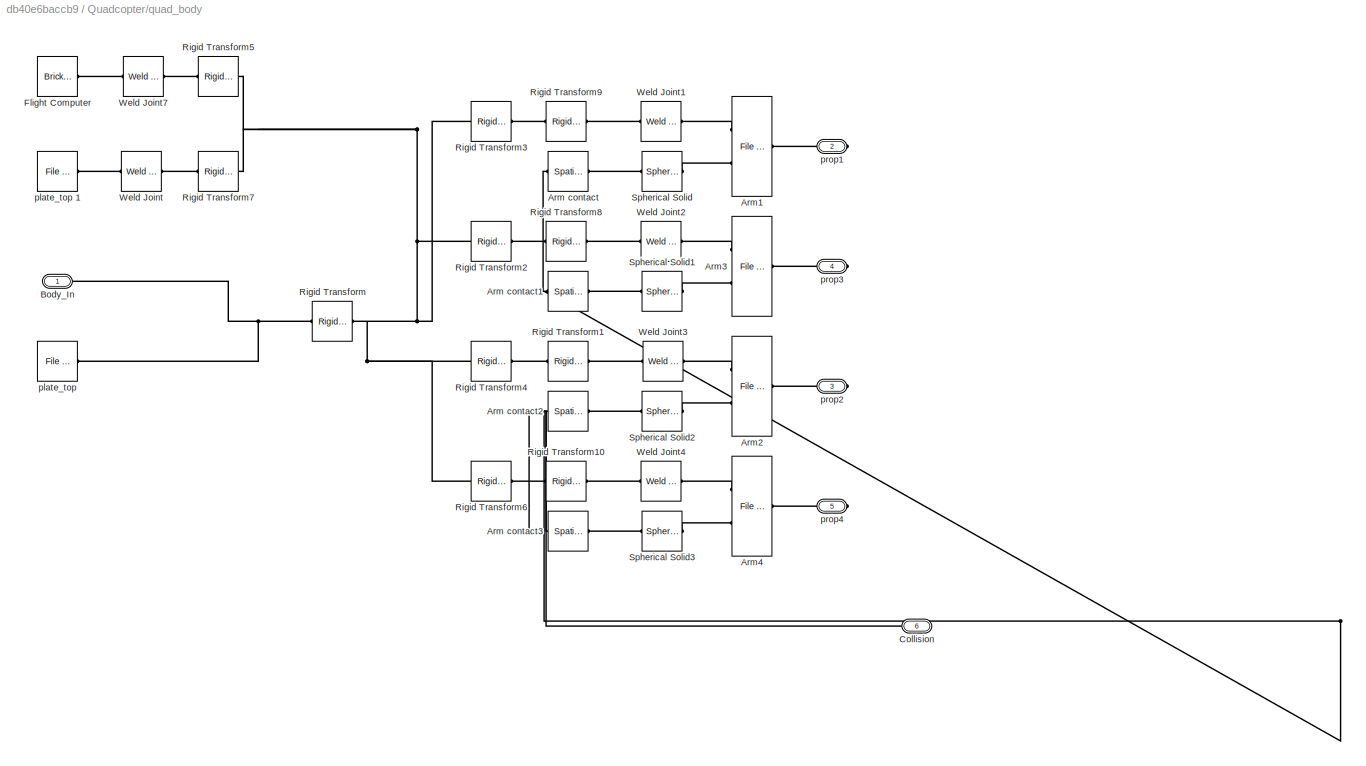
BLOCK [SubSystem] Quadcopter/quad_body
  Ports = [0, 0, 0, 0, 0, 2, 4]
  RequestExecContextInheritance = off
BLOCK [Reference] Quadcopter/quad_body/ Arm1  REF=sm_lib/Body Elements/File Solid
  Ports = [0, 0, 0, 0, 0, 2, 1]
  SourceBlock = sm_lib/Body Elements/File Solid
  SourceProductBaseCode = MS
  SourceProductName = Simscape Multibody
  SourceType = File Solid
BLOCK [Reference] Quadcopter/quad_body/ Arm3  REF=sm_lib/Body Elements/File Solid
  Ports = [0, 0, 0, 0, 0, 2, 1]
  SourceBlock = sm_lib/Body Elements/File Solid
  SourceProductBaseCode = MS
  SourceProductName = Simscape Multibody
  SourceType = File Solid
BLOCK [Reference] Quadcopter/quad_body/Arm contact  REF=sm_lib/Forces and
Torques/Spatial
Contact Force
  Ports = [0, 0, 0, 0, 0, 1, 1]
  SourceBlock = sm_lib/Forces and\nTorques/Spatial\nContact Force
  SourceProductBaseCode = MS
  SourceProductName = Simscape Multibody
  SourceType = Spatial\nContact Force
BLOCK [Reference] Quadcopter/quad_body/Arm contact1  REF=sm_lib/Forces and
Torques/Spatial
Contact Force
  Ports = [0, 0, 0, 0, 0, 1, 1]
  SourceBlock = sm_lib/Forces and\nTorques/Spatial\nContact Force
  SourceProductBaseCode = MS
  SourceProductName = Simscape Multibody
  SourceType = Spatial\nContact Force
BLOCK [Reference] Quadcopter/quad_body/Arm contact2  REF=sm_lib/Forces and
Torques/Spatial
Contact Force
  Ports = [0, 0, 0, 0, 0, 1, 1]
  SourceBlock = sm_lib/Forces and\nTorques/Spatial\nContact Force
  SourceProductBaseCode = MS
  SourceProductName = Simscape Multibody
  SourceType = Spatial\nContact Force
BLOCK [Reference] Quadcopter/quad_body/Arm contact3  REF=sm_lib/Forces and
Torques/Spatial
Contact Force
  Ports = [0, 0, 0, 0, 0, 1, 1]
  SourceBlock = sm_lib/Forces and\nTorques/Spatial\nContact Force
  SourceProductBaseCode = MS
  SourceProductName = Simscape Multibody
  SourceType = Spatial\nContact Force
BLOCK [Reference] Quadcopter/quad_body/Arm2  REF=sm_lib/Body Elements/File Solid
  Ports = [0, 0, 0, 0, 0, 2, 1]
  SourceBlock = sm_lib/Body Elements/File Solid
  SourceProductBaseCode = MS
  SourceProductName = Simscape Multibody
  SourceType = File Solid
BLOCK [Reference] Quadcopter/quad_body/Arm4  REF=sm_lib/Body Elements/File Solid
  Ports = [0, 0, 0, 0, 0, 2, 1]
  SourceBlock = sm_lib/Body Elements/File Solid
  SourceProductBaseCode = MS
  SourceProductName = Simscape Multibody
  SourceType = File Solid
BLOCK [PMIOPort] Quadcopter/quad_body/Body_In
  Side = Left
BLOCK [PMIOPort] Quadcopter/quad_body/Collision
  Port = 6
  Side = Left
BLOCK [Reference] Quadcopter/quad_body/Flight Computer  REF=sm_lib/Body Elements/Brick Solid
  Ports = [0, 0, 0, 0, 0, 0, 1]
  SourceBlock = sm_lib/Body Elements/Brick Solid
  SourceProductBaseCode = MS
  SourceProductName = Simscape Multibody
  SourceType = Brick Solid
BLOCK [Reference] Quadcopter/quad_body/Rigid Transform  REF=sm_lib/Frames and
Transforms/Rigid
Transform
  Ports = [0, 0, 0, 0, 0, 1, 1]
  SourceBlock = sm_lib/Frames and\nTransforms/Rigid\nTransform
  SourceProductBaseCode = MS
  SourceProductName = Simscape Multibody
  SourceType = Rigid\nTransform
BLOCK [Reference] Quadcopter/quad_body/Rigid Transform1  REF=sm_lib/Frames and
Transforms/Rigid
Transform
  Ports = [0, 0, 0, 0, 0, 1, 1]
  SourceBlock = sm_lib/Frames and\nTransforms/Rigid\nTransform
  SourceProductBaseCode = MS
  SourceProductName = Simscape Multibody
  SourceType = Rigid\nTransform
BLOCK [Reference] Quadcopter/quad_body/Rigid Transform10  REF=sm_lib/Frames and
Transforms/Rigid
Transform
  Ports = [0, 0, 0, 0, 0, 1, 1]
  SourceBlock = sm_lib/Frames and\nTransforms/Rigid\nTransform
  SourceProductBaseCode = MS
  SourceProductName = Simscape Multibody
  SourceType = Rigid\nTransform
BLOCK [Reference] Quadcopter/quad_body/Rigid Transform2  REF=sm_lib/Frames and
Transforms/Rigid
Transform
  Ports = [0, 0, 0, 0, 0, 1, 1]
  SourceBlock = sm_lib/Frames and\nTransforms/Rigid\nTransform
  SourceProductBaseCode = MS
  SourceProductName = Simscape Multibody
  SourceType = Rigid\nTransform
BLOCK [Reference] Quadcopter/quad_body/Rigid Transform3  REF=sm_lib/Frames and
Transforms/Rigid
Transform
  Ports = [0, 0, 0, 0, 0, 1, 1]
  SourceBlock = sm_lib/Frames and\nTransforms/Rigid\nTransform
  SourceProductBaseCode = MS
  SourceProductName = Simscape Multibody
  SourceType = Rigid\nTransform
BLOCK [Reference] Quadcopter/quad_body/Rigid Transform4  REF=sm_lib/Frames and
Transforms/Rigid
Transform
  Ports = [0, 0, 0, 0, 0, 1, 1]
  SourceBlock = sm_lib/Frames and\nTransforms/Rigid\nTransform
  SourceProductBaseCode = MS
  SourceProductName = Simscape Multibody
  SourceType = Rigid\nTransform
BLOCK [Reference] Quadcopter/quad_body/Rigid Transform5  REF=sm_lib/Frames and
Transforms/Rigid
Transform
  Ports = [0, 0, 0, 0, 0, 1, 1]
  SourceBlock = sm_lib/Frames and\nTransforms/Rigid\nTransform
  SourceProductBaseCode = MS
  SourceProductName = Simscape Multibody
  SourceType = Rigid\nTransform
BLOCK [Reference] Quadcopter/quad_body/Rigid Transform6  REF=sm_lib/Frames and
Transforms/Rigid
Transform
  Ports = [0, 0, 0, 0, 0, 1, 1]
  SourceBlock = sm_lib/Frames and\nTransforms/Rigid\nTransform
  SourceProductBaseCode = MS
  SourceProductName = Simscape Multibody
  SourceType = Rigid\nTransform
BLOCK [Reference] Quadcopter/quad_body/Rigid Transform7  REF=sm_lib/Frames and
Transforms/Rigid
Transform
  Ports = [0, 0, 0, 0, 0, 1, 1]
  SourceBlock = sm_lib/Frames and\nTransforms/Rigid\nTransform
  SourceProductBaseCode = MS
  SourceProductName = Simscape Multibody
  SourceType = Rigid\nTransform
BLOCK [Reference] Quadcopter/quad_body/Rigid Transform8  REF=sm_lib/Frames and
Transforms/Rigid
Transform
  Ports = [0, 0, 0, 0, 0, 1, 1]
  SourceBlock = sm_lib/Frames and\nTransforms/Rigid\nTransform
  SourceProductBaseCode = MS
  SourceProductName = Simscape Multibody
  SourceType = Rigid\nTransform
BLOCK [Reference] Quadcopter/quad_body/Rigid Transform9  REF=sm_lib/Frames and
Transforms/Rigid
Transform
  Ports = [0, 0, 0, 0, 0, 1, 1]
  SourceBlock = sm_lib/Frames and\nTransforms/Rigid\nTransform
  SourceProductBaseCode = MS
  SourceProductName = Simscape Multibody
  SourceType = Rigid\nTransform
BLOCK [Reference] Quadcopter/quad_body/Spherical Solid  REF=sm_lib/Body Elements/Spherical Solid
  Ports = [0, 0, 0, 0, 0, 1, 1]
  SourceBlock = sm_lib/Body Elements/Spherical Solid
  SourceProductBaseCode = MS
  SourceProductName = Simscape Multibody
  SourceType = Spherical Solid
BLOCK [Reference] Quadcopter/quad_body/Spherical Solid1  REF=sm_lib/Body Elements/Spherical Solid
  Ports = [0, 0, 0, 0, 0, 1, 1]
  SourceBlock = sm_lib/Body Elements/Spherical Solid
  SourceProductBaseCode = MS
  SourceProductName = Simscape Multibody
  SourceType = Spherical Solid
BLOCK [Reference] Quadcopter/quad_body/Spherical Solid2  REF=sm_lib/Body Elements/Spherical Solid
  Ports = [0, 0, 0, 0, 0, 1, 1]
  SourceBlock = sm_lib/Body Elements/Spherical Solid
  SourceProductBaseCode = MS
  SourceProductName = Simscape Multibody
  SourceType = Spherical Solid
BLOCK [Reference] Quadcopter/quad_body/Spherical Solid3  REF=sm_lib/Body Elements/Spherical Solid
  Ports = [0, 0, 0, 0, 0, 1, 1]
  SourceBlock = sm_lib/Body Elements/Spherical Solid
  SourceProductBaseCode = MS
  SourceProductName = Simscape Multibody
  SourceType = Spherical Solid
BLOCK [Reference] Quadcopter/quad_body/Weld Joint  REF=sm_lib/Joints/Weld Joint
  Ports = [0, 0, 0, 0, 0, 1, 1]
  SourceBlock = sm_lib/Joints/Weld Joint
  SourceProductBaseCode = MS
  SourceProductName = Simscape Multibody
  SourceType = Weld Joint
BLOCK [Reference] Quadcopter/quad_body/Weld Joint1  REF=sm_lib/Joints/Weld Joint
  Ports = [0, 0, 0, 0, 0, 1, 1]
  SourceBlock = sm_lib/Joints/Weld Joint
  SourceProductBaseCode = MS
  SourceProductName = Simscape Multibody
  SourceType = Weld Joint
BLOCK [Reference] Quadcopter/quad_body/Weld Joint2  REF=sm_lib/Joints/Weld Joint
  Ports = [0, 0, 0, 0, 0, 1, 1]
  SourceBlock = sm_lib/Joints/Weld Joint
  SourceProductBaseCode = MS
  SourceProductName = Simscape Multibody
  SourceType = Weld Joint
BLOCK [Reference] Quadcopter/quad_body/Weld Joint3  REF=sm_lib/Joints/Weld Joint
  Ports = [0, 0, 0, 0, 0, 1, 1]
  SourceBlock = sm_lib/Joints/Weld Joint
  SourceProductBaseCode = MS
  SourceProductName = Simscape Multibody
  SourceType = Weld Joint
BLOCK [Reference] Quadcopter/quad_body/Weld Joint4  REF=sm_lib/Joints/Weld Joint
  Ports = [0, 0, 0, 0, 0, 1, 1]
  SourceBlock = sm_lib/Joints/Weld Joint
  SourceProductBaseCode = MS
  SourceProductName = Simscape Multibody
  SourceType = Weld Joint
BLOCK [Reference] Quadcopter/quad_body/Weld Joint7  REF=sm_lib/Joints/Weld Joint
  Ports = [0, 0, 0, 0, 0, 1, 1]
  SourceBlock = sm_lib/Joints/Weld Joint
  SourceProductBaseCode = MS
  SourceProductName = Simscape Multibody
  SourceType = Weld Joint
BLOCK [Reference] Quadcopter/quad_body/plate_top   REF=sm_lib/Body Elements/File Solid
  Ports = [0, 0, 0, 0, 0, 0, 1]
  SourceBlock = sm_lib/Body Elements/File Solid
  SourceProductBaseCode = MS
  SourceProductName = Simscape Multibody
  SourceType = File Solid
BLOCK [Reference] Quadcopter/quad_body/plate_top 1  REF=sm_lib/Body Elements/File Solid
  Ports = [0, 0, 0, 0, 0, 0, 1]
  SourceBlock = sm_lib/Body Elements/File Solid
  SourceProductBaseCode = MS
  SourceProductName = Simscape Multibody
  SourceType = File Solid
BLOCK [PMIOPort] Quadcopter/quad_body/prop1
  Port = 2
  Side = Right
BLOCK [PMIOPort] Quadcopter/quad_body/prop2 
  Port = 3
  Side = Right
BLOCK [PMIOPort] Quadcopter/quad_body/prop3
  Port = 4
  Side = Right
BLOCK [PMIOPort] Quadcopter/quad_body/prop4
  Port = 5
  Side = Right
BLOCK [Reference] Rigid Transform  REF=sm_lib/Frames and
Transforms/Rigid
Transform
  Ports = [0, 0, 0, 0, 0, 1, 1]
  SourceBlock = sm_lib/Frames and\nTransforms/Rigid\nTransform
  SourceProductBaseCode = MS
  SourceProductName = Simscape Multibody
  SourceType = Rigid\nTransform
BLOCK [Reference] Solver Configuration  REF=nesl_utility/Solver
Configuration
  Ports = [0, 0, 0, 0, 0, 0, 1]
  SourceBlock = nesl_utility/Solver\nConfiguration
  SourceProductBaseCode = SS
  SourceProductName = Simscape
  SourceType = Solver\nConfiguration
BLOCK [Reference] Spatial Contact Force1  REF=sm_lib/Forces and
Torques/Spatial
Contact Force
  Ports = [0, 0, 0, 0, 0, 1, 1]
  SourceBlock = sm_lib/Forces and\nTorques/Spatial\nContact Force
  SourceProductBaseCode = MS
  SourceProductName = Simscape Multibody
  SourceType = Spatial\nContact Force
BLOCK [Reference] Spatial Contact Force2  REF=sm_lib/Forces and
Torques/Spatial
Contact Force
  Ports = [0, 0, 0, 0, 0, 1, 1]
  SourceBlock = sm_lib/Forces and\nTorques/Spatial\nContact Force
  SourceProductBaseCode = MS
  SourceProductName = Simscape Multibody
  SourceType = Spatial\nContact Force
BLOCK [Reference] Spatial Contact Force3  REF=sm_lib/Forces and
Torques/Spatial
Contact Force
  Ports = [0, 0, 0, 0, 0, 1, 1]
  SourceBlock = sm_lib/Forces and\nTorques/Spatial\nContact Force
  SourceProductBaseCode = MS
  SourceProductName = Simscape Multibody
  SourceType = Spatial\nContact Force
BLOCK [Reference] Spatial Contact Force4  REF=sm_lib/Forces and
Torques/Spatial
Contact Force
  Ports = [0, 0, 0, 0, 0, 1, 1]
  SourceBlock = sm_lib/Forces and\nTorques/Spatial\nContact Force
  SourceProductBaseCode = MS
  SourceProductName = Simscape Multibody
  SourceType = Spatial\nContact Force
BLOCK [Reference] World Frame  REF=sm_lib/Frames and
Transforms/World Frame
  Ports = [0, 0, 0, 0, 0, 0, 1]
  SourceBlock = sm_lib/Frames and\nTransforms/World Frame
  SourceProductBaseCode = MS
  SourceProductName = Simscape Multibody
  SourceType = World Frame
PNET net1: 6-DOF:LConn1 -- Gravity:RConn1 -- Rigid Transform:RConn1 -- Solver Configuration:RConn1 -- World Frame:RConn1
PLINE 6-DOF:RConn1 -- Quadcopter:LConn1
PNET net2: Ground:LConn1 -- Quadcopter:LConn2 -- Quadcopter:LConn3 -- Quadcopter:LConn4 -- Quadcopter:LConn5 -- Quadcopter:LConn6 -- Spatial Contact Force1:RConn1 -- Spatial Contact Force2:RConn1 -- Spatial Contact Force3:RConn1 -- Spatial Contact Force4:RConn1
PLINE Ground:RConn1 -- Rigid Transform:LConn1
PLINE PS Constant1:RConn1 -- Quadcopter:RConn6
PLINE PS Constant2:RConn1 -- Quadcopter:RConn7
PLINE PS Constant3:RConn1 -- Quadcopter:RConn8
PLINE PS Constant:RConn1 -- Quadcopter:RConn5
PLINE Quadcopter/Arm Collision:RConn1 -- Quadcopter/quad_body:LConn2
PLINE Quadcopter/Landing Support1 :RConn1 -- Quadcopter/propeller1:RConn1
PLINE Quadcopter/Landing Support2:RConn1 -- Quadcopter/propeller2:RConn1
PLINE Quadcopter/Landing Support3 :RConn1 -- Quadcopter/propeller3:RConn1
PLINE Quadcopter/Landing Support4:RConn1 -- Quadcopter/propeller4 :RConn1
PLINE Quadcopter/Propeller1:RConn1 -- Quadcopter/propeller1:RConn2
PLINE Quadcopter/Propeller2:RConn1 -- Quadcopter/propeller2:RConn2
PLINE Quadcopter/Propeller3:RConn1 -- Quadcopter/propeller3:RConn2
PLINE Quadcopter/Propeller4:RConn1 -- Quadcopter/propeller4 :RConn2
PNET net3: Quadcopter/Simscape Component1:LConn1 -- Quadcopter/prop2:RConn1 -- Quadcopter/propeller2:RConn3
PLINE Quadcopter/Simscape Component1:RConn1 -- Quadcopter/propeller2:LConn2
PNET net4: Quadcopter/Simscape Component2:LConn1 -- Quadcopter/prop3:RConn1 -- Quadcopter/propeller3:RConn3
PLINE Quadcopter/Simscape Component2:RConn1 -- Quadcopter/propeller3:LConn2
PNET net5: Quadcopter/Simscape Component3:LConn1 -- Quadcopter/prop4:RConn1 -- Quadcopter/propeller4 :RConn3
PLINE Quadcopter/Simscape Component3:RConn1 -- Quadcopter/propeller4 :LConn2
PNET net6: Quadcopter/Simscape Component:LConn1 -- Quadcopter/prop1:RConn1 -- Quadcopter/propeller1:RConn3
PLINE Quadcopter/Simscape Component:RConn1 -- Quadcopter/propeller1:LConn2
PLINE Quadcopter/arm:RConn1 -- Quadcopter/quad_body:LConn1
PLINE Quadcopter/propeller1/Collision Detector 1-1:LConn1 -- Quadcopter/propeller1/Leg:RConn1
PLINE Quadcopter/propeller1/Collision Detector 1-1:RConn1 -- Quadcopter/propeller1/Landing support1:RConn1
PLINE Quadcopter/propeller1/Collision Detector 1-2:LConn1 -- Quadcopter/propeller1/Propeller Contact:LConn1
PLINE Quadcopter/propeller1/Collision Detector 1-2:RConn1 -- Quadcopter/propeller1/Prop1:LConn1
PLINE Quadcopter/propeller1/Collision Detector 1-3:LConn1 -- Quadcopter/propeller1/Propeller Contact1:LConn1
PLINE Quadcopter/propeller1/Collision Detector 1-3:RConn1 -- Quadcopter/propeller1/Prop1:LConn2
PLINE Quadcopter/propeller1/External Force and Torque1:LConn1 -- Quadcopter/propeller1/PS Gain:RConn1
PNET net7: Quadcopter/propeller1/External Force and Torque1:RConn1 -- Quadcopter/propeller1/Revolute Joint:LConn1 -- Quadcopter/propeller1/Rotational Friction:LConn1 -- Quadcopter/propeller1/Transform3:LConn1 -- Quadcopter/propeller1/motor base:RConn1
PLINE Quadcopter/propeller1/External Force and Torque:LConn1 -- Quadcopter/propeller1/Thrust:RConn1
PNET net8: Quadcopter/propeller1/External Force and Torque:RConn1 -- Quadcopter/propeller1/Prop1:RConn1 -- Quadcopter/propeller1/Weld Joint4:RConn1
PLINE Quadcopter/propeller1/Landing support1:LConn1 -- Quadcopter/propeller1/Weld Joint1:RConn1
PLINE Quadcopter/propeller1/Motor:RConn1 -- Quadcopter/propeller1/Transform1:LConn1
PNET net9: Quadcopter/propeller1/PS Gain:LConn1 -- Quadcopter/propeller1/Revolute Joint:LConn2 -- Quadcopter/propeller1/Torque:RConn1
PNET net10: Quadcopter/propeller1/Propeller Collision:RConn1 -- Quadcopter/propeller1/Propeller Contact1:RConn1 -- Quadcopter/propeller1/Propeller Contact:RConn1
PNET net11: Quadcopter/propeller1/Revolute Joint:RConn1 -- Quadcopter/propeller1/Rotational Friction:RConn1 -- Quadcopter/propeller1/Transform4:LConn1
PLINE Quadcopter/propeller1/Rigid Transform6:LConn1 -- Quadcopter/propeller1/motor1:RConn1
PLINE Quadcopter/propeller1/Rigid Transform6:RConn1 -- Quadcopter/propeller1/Weld Joint4:LConn1
PLINE Quadcopter/propeller1/Rotational Friction/External Force and Torque B:LConn1 -- Quadcopter/propeller1/Rotational Friction/Sign Torque B:RConn1
PNET net12: Quadcopter/propeller1/Rotational Friction/External Force and Torque B:RConn1 -- Quadcopter/propeller1/Rotational Friction/Transform Sensor:LConn1 -- Quadcopter/propeller1/Rotational Friction/f2:RConn1
PNET net13: Quadcopter/propeller1/Rotational Friction/External Force and Torque F:LConn1 -- Quadcopter/propeller1/Rotational Friction/Ideal Torque Sensor:RConn2 -- Quadcopter/propeller1/Rotational Friction/Sign Torque B:LConn1
PNET net14: Quadcopter/propeller1/Rotational Friction/External Force and Torque F:RConn1 -- Quadcopter/propeller1/Rotational Friction/Transform Sensor:RConn1 -- Quadcopter/propeller1/Rotational Friction/f1:RConn1
PLINE Quadcopter/propeller1/Rotational Friction/Ideal Angular Velocity Source:LConn1 -- Quadcopter/propeller1/Rotational Friction/Rotational Friction:LConn1
PLINE Quadcopter/propeller1/Rotational Friction/Ideal Angular Velocity Source:RConn1 -- Quadcopter/propeller1/Rotational Friction/Transform Sensor:RConn2
PLINE Quadcopter/propeller1/Rotational Friction/Ideal Angular Velocity Source:RConn2 -- Quadcopter/propeller1/Rotational Friction/Ideal Torque Sensor:LConn1
PNET net15: Quadcopter/propeller1/Rotational Friction/Ideal Torque Sensor:RConn1 -- Quadcopter/propeller1/Rotational Friction/Mechanical Rotational Reference:LConn1 -- Quadcopter/propeller1/Rotational Friction/Rotational Friction:RConn1
PLINE Quadcopter/propeller1/Transform1:RConn1 -- Quadcopter/propeller1/motor base:LConn1
PLINE Quadcopter/propeller1/Transform2:LConn1 -- Quadcopter/propeller1/Weld Joint2:RConn1
PLINE Quadcopter/propeller1/Transform2:RConn1 -- Quadcopter/propeller1/motor cap1:RConn1
PLINE Quadcopter/propeller1/Transform3:RConn1 -- Quadcopter/propeller1/Weld Joint1:LConn1
PLINE Quadcopter/propeller1/Transform4:RConn1 -- Quadcopter/propeller1/motor1:LConn1
PLINE Quadcopter/propeller1/Weld Joint2:LConn1 -- Quadcopter/propeller1/motor1:LConn2
PLINE Quadcopter/propeller1:LConn1 -- Quadcopter/quad_body:RConn1
PLINE Quadcopter/propeller2/Collision Detector 1-1:LConn1 -- Quadcopter/propeller2/Propeller Contact1:LConn1
PLINE Quadcopter/propeller2/Collision Detector 1-1:RConn1 -- Quadcopter/propeller2/Prop2:LConn2
PLINE Quadcopter/propeller2/Collision Detector 1-3:LConn1 -- Quadcopter/propeller2/Propeller Contact:LConn1
PLINE Quadcopter/propeller2/Collision Detector 1-3:RConn1 -- Quadcopter/propeller2/Prop2:LConn1
PLINE Quadcopter/propeller2/Collision Detector 2:LConn1 -- Quadcopter/propeller2/Leg:RConn1
PLINE Quadcopter/propeller2/Collision Detector 2:RConn1 -- Quadcopter/propeller2/Landing support2:RConn1
PLINE Quadcopter/propeller2/External Force and Torque1:LConn1 -- Quadcopter/propeller2/PS Gain:RConn1
PNET net16: Quadcopter/propeller2/External Force and Torque1:RConn1 -- Quadcopter/propeller2/Revolute Joint1:LConn1 -- Quadcopter/propeller2/Rotational Friction:LConn1 -- Quadcopter/propeller2/Transform3:LConn1 -- Quadcopter/propeller2/motor base:RConn1
PLINE Quadcopter/propeller2/Landing support2:LConn1 -- Quadcopter/propeller2/Weld Joint2:RConn1
PLINE Quadcopter/propeller2/Motor:RConn1 -- Quadcopter/propeller2/Transform1:LConn1
PNET net17: Quadcopter/propeller2/PS Gain:LConn1 -- Quadcopter/propeller2/Revolute Joint1:LConn2 -- Quadcopter/propeller2/Torque:RConn1
PNET net18: Quadcopter/propeller2/Prop2:RConn1 -- Quadcopter/propeller2/Thrust:RConn1 -- Quadcopter/propeller2/Weld Joint5:RConn1
PNET net19: Quadcopter/propeller2/Propeller Collision:RConn1 -- Quadcopter/propeller2/Propeller Contact1:RConn1 -- Quadcopter/propeller2/Propeller Contact:RConn1
PNET net20: Quadcopter/propeller2/Revolute Joint1:RConn1 -- Quadcopter/propeller2/Rotational Friction:RConn1 -- Quadcopter/propeller2/Transform4:LConn1
PLINE Quadcopter/propeller2/Rigid Transform6:LConn1 -- Quadcopter/propeller2/motor2:RConn1
PLINE Quadcopter/propeller2/Rigid Transform6:RConn1 -- Quadcopter/propeller2/Weld Joint5:LConn1
PLINE Quadcopter/propeller2/Rotational Friction/External Force and Torque B:LConn1 -- Quadcopter/propeller2/Rotational Friction/Sign Torque B:RConn1
PNET net21: Quadcopter/propeller2/Rotational Friction/External Force and Torque B:RConn1 -- Quadcopter/propeller2/Rotational Friction/Transform Sensor:LConn1 -- Quadcopter/propeller2/Rotational Friction/f2:RConn1
PNET net22: Quadcopter/propeller2/Rotational Friction/External Force and Torque F:LConn1 -- Quadcopter/propeller2/Rotational Friction/Ideal Torque Sensor:RConn2 -- Quadcopter/propeller2/Rotational Friction/Sign Torque B:LConn1
PNET net23: Quadcopter/propeller2/Rotational Friction/External Force and Torque F:RConn1 -- Quadcopter/propeller2/Rotational Friction/Transform Sensor:RConn1 -- Quadcopter/propeller2/Rotational Friction/f1:RConn1
PLINE Quadcopter/propeller2/Rotational Friction/Ideal Angular Velocity Source:LConn1 -- Quadcopter/propeller2/Rotational Friction/Rotational Friction:LConn1
PLINE Quadcopter/propeller2/Rotational Friction/Ideal Angular Velocity Source:RConn1 -- Quadcopter/propeller2/Rotational Friction/Transform Sensor:RConn2
PLINE Quadcopter/propeller2/Rotational Friction/Ideal Angular Velocity Source:RConn2 -- Quadcopter/propeller2/Rotational Friction/Ideal Torque Sensor:LConn1
PNET net24: Quadcopter/propeller2/Rotational Friction/Ideal Torque Sensor:RConn1 -- Quadcopter/propeller2/Rotational Friction/Mechanical Rotational Reference:LConn1 -- Quadcopter/propeller2/Rotational Friction/Rotational Friction:RConn1
PLINE Quadcopter/propeller2/Thrust1:RConn1 -- Quadcopter/propeller2/Thrust:LConn1
PLINE Quadcopter/propeller2/Transform1:RConn1 -- Quadcopter/propeller2/motor base:LConn1
PLINE Quadcopter/propeller2/Transform2:LConn1 -- Quadcopter/propeller2/Weld Joint3:LConn1
PLINE Quadcopter/propeller2/Transform2:RConn1 -- Quadcopter/propeller2/motor cap2:RConn1
PLINE Quadcopter/propeller2/Transform3:RConn1 -- Quadcopter/propeller2/Weld Joint2:LConn1
PLINE Quadcopter/propeller2/Transform4:RConn1 -- Quadcopter/propeller2/motor2:LConn1
PLINE Quadcopter/propeller2/Weld Joint3:RConn1 -- Quadcopter/propeller2/motor2:LConn2
PLINE Quadcopter/propeller2:LConn1 -- Quadcopter/quad_body:RConn2
PLINE Quadcopter/propeller3/Collision Detector 1-1:LConn1 -- Quadcopter/propeller3/Propeller Contact:LConn1
PLINE Quadcopter/propeller3/Collision Detector 1-1:RConn1 -- Quadcopter/propeller3/Prop3 :LConn1
PLINE Quadcopter/propeller3/Collision Detector 1-3:LConn1 -- Quadcopter/propeller3/Propeller Contact1:LConn1
PLINE Quadcopter/propeller3/Collision Detector 1-3:RConn1 -- Quadcopter/propeller3/Prop3 :LConn2
PLINE Quadcopter/propeller3/Collision Detector 3-1:LConn1 -- Quadcopter/propeller3/Leg:RConn1
PLINE Quadcopter/propeller3/Collision Detector 3-1:RConn1 -- Quadcopter/propeller3/Landing support3:RConn1
PLINE Quadcopter/propeller3/External Force and Torque1:LConn1 -- Quadcopter/propeller3/PS Gain:RConn1
PNET net25: Quadcopter/propeller3/External Force and Torque1:RConn1 -- Quadcopter/propeller3/Revolute Joint2:LConn1 -- Quadcopter/propeller3/Rotational Friction:LConn1 -- Quadcopter/propeller3/Transform1:LConn1 -- Quadcopter/propeller3/motor base:RConn1
PLINE Quadcopter/propeller3/Landing support3:LConn1 -- Quadcopter/propeller3/Weld Joint2:RConn1
PLINE Quadcopter/propeller3/Motor:RConn1 -- Quadcopter/propeller3/Transform3:LConn1
PNET net26: Quadcopter/propeller3/PS Gain:LConn1 -- Quadcopter/propeller3/Revolute Joint2:LConn2 -- Quadcopter/propeller3/Torque:RConn1
PNET net27: Quadcopter/propeller3/Prop3 :RConn1 -- Quadcopter/propeller3/Thrust:RConn1 -- Quadcopter/propeller3/Weld Joint6:RConn1
PNET net28: Quadcopter/propeller3/Propeller Collision:RConn1 -- Quadcopter/propeller3/Propeller Contact1:RConn1 -- Quadcopter/propeller3/Propeller Contact:RConn1
PNET net29: Quadcopter/propeller3/Revolute Joint2:RConn1 -- Quadcopter/propeller3/Rotational Friction:RConn1 -- Quadcopter/propeller3/Transform2:LConn1
PLINE Quadcopter/propeller3/Rigid Transform6:LConn1 -- Quadcopter/propeller3/motor3:RConn1
PLINE Quadcopter/propeller3/Rigid Transform6:RConn1 -- Quadcopter/propeller3/Weld Joint6:LConn1
PLINE Quadcopter/propeller3/Rotational Friction/External Force and Torque B:LConn1 -- Quadcopter/propeller3/Rotational Friction/Sign Torque B:RConn1
PNET net30: Quadcopter/propeller3/Rotational Friction/External Force and Torque B:RConn1 -- Quadcopter/propeller3/Rotational Friction/Transform Sensor:LConn1 -- Quadcopter/propeller3/Rotational Friction/f2:RConn1
PNET net31: Quadcopter/propeller3/Rotational Friction/External Force and Torque F:LConn1 -- Quadcopter/propeller3/Rotational Friction/Ideal Torque Sensor:RConn2 -- Quadcopter/propeller3/Rotational Friction/Sign Torque B:LConn1
PNET net32: Quadcopter/propeller3/Rotational Friction/External Force and Torque F:RConn1 -- Quadcopter/propeller3/Rotational Friction/Transform Sensor:RConn1 -- Quadcopter/propeller3/Rotational Friction/f1:RConn1
PLINE Quadcopter/propeller3/Rotational Friction/Ideal Angular Velocity Source:LConn1 -- Quadcopter/propeller3/Rotational Friction/Rotational Friction:LConn1
PLINE Quadcopter/propeller3/Rotational Friction/Ideal Angular Velocity Source:RConn1 -- Quadcopter/propeller3/Rotational Friction/Transform Sensor:RConn2
PLINE Quadcopter/propeller3/Rotational Friction/Ideal Angular Velocity Source:RConn2 -- Quadcopter/propeller3/Rotational Friction/Ideal Torque Sensor:LConn1
PNET net33: Quadcopter/propeller3/Rotational Friction/Ideal Torque Sensor:RConn1 -- Quadcopter/propeller3/Rotational Friction/Mechanical Rotational Reference:LConn1 -- Quadcopter/propeller3/Rotational Friction/Rotational Friction:RConn1
PLINE Quadcopter/propeller3/Thrust1:RConn1 -- Quadcopter/propeller3/Thrust:LConn1
PLINE Quadcopter/propeller3/Transform1:RConn1 -- Quadcopter/propeller3/Weld Joint2:LConn1
PLINE Quadcopter/propeller3/Transform2:RConn1 -- Quadcopter/propeller3/motor3:LConn1
PLINE Quadcopter/propeller3/Transform3:RConn1 -- Quadcopter/propeller3/motor base:LConn1
PLINE Quadcopter/propeller3/Transform4:LConn1 -- Quadcopter/propeller3/Weld Joint3:LConn1
PLINE Quadcopter/propeller3/Transform4:RConn1 -- Quadcopter/propeller3/motor cap3:RConn1
PLINE Quadcopter/propeller3/Weld Joint3:RConn1 -- Quadcopter/propeller3/motor3:LConn2
PLINE Quadcopter/propeller3:LConn1 -- Quadcopter/quad_body:RConn3
PLINE Quadcopter/propeller4 /Collision Detector 1-1:LConn1 -- Quadcopter/propeller4 /Propeller Contact:LConn1
PLINE Quadcopter/propeller4 /Collision Detector 1-1:RConn1 -- Quadcopter/propeller4 /Prop4:LConn2
PLINE Quadcopter/propeller4 /Collision Detector 1-3:LConn1 -- Quadcopter/propeller4 /Propeller Contact1:LConn1
PLINE Quadcopter/propeller4 /Collision Detector 1-3:RConn1 -- Quadcopter/propeller4 /Prop4:LConn1
PLINE Quadcopter/propeller4 /Collision Detector 4-1:LConn1 -- Quadcopter/propeller4 /Leg:RConn1
PLINE Quadcopter/propeller4 /Collision Detector 4-1:RConn1 -- Quadcopter/propeller4 /Landing support4:RConn1
PLINE Quadcopter/propeller4 /External Force and Torque1:LConn1 -- Quadcopter/propeller4 /PS Gain:RConn1
PNET net34: Quadcopter/propeller4 /External Force and Torque1:RConn1 -- Quadcopter/propeller4 /Revolute Joint3:LConn1 -- Quadcopter/propeller4 /Rotational Friction:LConn1 -- Quadcopter/propeller4 /Transform2:LConn1 -- Quadcopter/propeller4 /motor base:RConn1
PLINE Quadcopter/propeller4 /Landing support4:LConn1 -- Quadcopter/propeller4 /Weld Joint1:RConn1
PLINE Quadcopter/propeller4 /Motor:RConn1 -- Quadcopter/propeller4 /Transform1:LConn1
PNET net35: Quadcopter/propeller4 /PS Gain:LConn1 -- Quadcopter/propeller4 /Revolute Joint3:LConn2 -- Quadcopter/propeller4 /Torque:RConn1
PNET net36: Quadcopter/propeller4 /Prop4:RConn1 -- Quadcopter/propeller4 /Thrust:RConn1 -- Quadcopter/propeller4 /Weld Joint7:RConn1
PNET net37: Quadcopter/propeller4 /Propeller Collision:RConn1 -- Quadcopter/propeller4 /Propeller Contact1:RConn1 -- Quadcopter/propeller4 /Propeller Contact:RConn1
PNET net38: Quadcopter/propeller4 /Revolute Joint3:RConn1 -- Quadcopter/propeller4 /Rotational Friction:RConn1 -- Quadcopter/propeller4 /Transform4:LConn1
PLINE Quadcopter/propeller4 /Rigid Transform6:LConn1 -- Quadcopter/propeller4 /motor4:RConn1
PLINE Quadcopter/propeller4 /Rigid Transform6:RConn1 -- Quadcopter/propeller4 /Weld Joint7:LConn1
PLINE Quadcopter/propeller4 /Rotational Friction/External Force and Torque B:LConn1 -- Quadcopter/propeller4 /Rotational Friction/Sign Torque B:RConn1
PNET net39: Quadcopter/propeller4 /Rotational Friction/External Force and Torque B:RConn1 -- Quadcopter/propeller4 /Rotational Friction/Transform Sensor:LConn1 -- Quadcopter/propeller4 /Rotational Friction/f2:RConn1
PNET net40: Quadcopter/propeller4 /Rotational Friction/External Force and Torque F:LConn1 -- Quadcopter/propeller4 /Rotational Friction/Ideal Torque Sensor:RConn2 -- Quadcopter/propeller4 /Rotational Friction/Sign Torque B:LConn1
PNET net41: Quadcopter/propeller4 /Rotational Friction/External Force and Torque F:RConn1 -- Quadcopter/propeller4 /Rotational Friction/Transform Sensor:RConn1 -- Quadcopter/propeller4 /Rotational Friction/f1:RConn1
PLINE Quadcopter/propeller4 /Rotational Friction/Ideal Angular Velocity Source:LConn1 -- Quadcopter/propeller4 /Rotational Friction/Rotational Friction:LConn1
PLINE Quadcopter/propeller4 /Rotational Friction/Ideal Angular Velocity Source:RConn1 -- Quadcopter/propeller4 /Rotational Friction/Transform Sensor:RConn2
PLINE Quadcopter/propeller4 /Rotational Friction/Ideal Angular Velocity Source:RConn2 -- Quadcopter/propeller4 /Rotational Friction/Ideal Torque Sensor:LConn1
PNET net42: Quadcopter/propeller4 /Rotational Friction/Ideal Torque Sensor:RConn1 -- Quadcopter/propeller4 /Rotational Friction/Mechanical Rotational Reference:LConn1 -- Quadcopter/propeller4 /Rotational Friction/Rotational Friction:RConn1
PLINE Quadcopter/propeller4 /Thrust1:RConn1 -- Quadcopter/propeller4 /Thrust:LConn1
PLINE Quadcopter/propeller4 /Transform1:RConn1 -- Quadcopter/propeller4 /motor base:LConn1
PLINE Quadcopter/propeller4 /Transform2:RConn1 -- Quadcopter/propeller4 /Weld Joint1:LConn1
PLINE Quadcopter/propeller4 /Transform3:LConn1 -- Quadcopter/propeller4 /Weld Joint3:LConn1
PLINE Quadcopter/propeller4 /Transform3:RConn1 -- Quadcopter/propeller4 /motor cap4:RConn1
PLINE Quadcopter/propeller4 /Transform4:RConn1 -- Quadcopter/propeller4 /motor4:LConn1
PLINE Quadcopter/propeller4 /Weld Joint3:RConn1 -- Quadcopter/propeller4 /motor4:LConn2
PLINE Quadcopter/propeller4 :LConn1 -- Quadcopter/quad_body:RConn4
PLINE Quadcopter/quad_body/ Arm1:LConn1 -- Quadcopter/quad_body/Weld Joint1:RConn1
PLINE Quadcopter/quad_body/ Arm1:LConn2 -- Quadcopter/quad_body/Spherical Solid:RConn1
PLINE Quadcopter/quad_body/ Arm1:RConn1 -- Quadcopter/quad_body/prop1:RConn1
PLINE Quadcopter/quad_body/ Arm3:LConn1 -- Quadcopter/quad_body/Weld Joint2:RConn1
PLINE Quadcopter/quad_body/ Arm3:LConn2 -- Quadcopter/quad_body/Spherical Solid1:RConn1
PLINE Quadcopter/quad_body/ Arm3:RConn1 -- Quadcopter/quad_body/prop3:RConn1
PLINE Quadcopter/quad_body/Arm contact1:LConn1 -- Quadcopter/quad_body/Spherical Solid1:LConn1
PNET net43: Quadcopter/quad_body/Arm contact1:RConn1 -- Quadcopter/quad_body/Arm contact2:RConn1 -- Quadcopter/quad_body/Arm contact3:RConn1 -- Quadcopter/quad_body/Arm contact:RConn1 -- Quadcopter/quad_body/Collision:RConn1
PLINE Quadcopter/quad_body/Arm contact2:LConn1 -- Quadcopter/quad_body/Spherical Solid2:LConn1
PLINE Quadcopter/quad_body/Arm contact3:LConn1 -- Quadcopter/quad_body/Spherical Solid3:LConn1
PLINE Quadcopter/quad_body/Arm contact:LConn1 -- Quadcopter/quad_body/Spherical Solid:LConn1
PLINE Quadcopter/quad_body/Arm2:LConn1 -- Quadcopter/quad_body/Weld Joint3:RConn1
PLINE Quadcopter/quad_body/Arm2:LConn2 -- Quadcopter/quad_body/Spherical Solid2:RConn1
PLINE Quadcopter/quad_body/Arm2:RConn1 -- Quadcopter/quad_body/prop2 :RConn1
PLINE Quadcopter/quad_body/Arm4:LConn1 -- Quadcopter/quad_body/Weld Joint4:RConn1
PLINE Quadcopter/quad_body/Arm4:LConn2 -- Quadcopter/quad_body/Spherical Solid3:RConn1
PLINE Quadcopter/quad_body/Arm4:RConn1 -- Quadcopter/quad_body/prop4:RConn1
PNET net44: Quadcopter/quad_body/Body_In:RConn1 -- Quadcopter/quad_body/Rigid Transform:RConn1 -- Quadcopter/quad_body/plate_top :RConn1
PLINE Quadcopter/quad_body/Flight Computer:RConn1 -- Quadcopter/quad_body/Weld Joint7:RConn1
PLINE Quadcopter/quad_body/Rigid Transform10:LConn1 -- Quadcopter/quad_body/Rigid Transform6:RConn1
PLINE Quadcopter/quad_body/Rigid Transform10:RConn1 -- Quadcopter/quad_body/Weld Joint4:LConn1
PLINE Quadcopter/quad_body/Rigid Transform1:LConn1 -- Quadcopter/quad_body/Rigid Transform4:RConn1
PLINE Quadcopter/quad_body/Rigid Transform1:RConn1 -- Quadcopter/quad_body/Weld Joint3:LConn1
PNET net45: Quadcopter/quad_body/Rigid Transform2:LConn1 -- Quadcopter/quad_body/Rigid Transform3:LConn1 -- Quadcopter/quad_body/Rigid Transform4:LConn1 -- Quadcopter/quad_body/Rigid Transform5:LConn1 -- Quadcopter/quad_body/Rigid Transform6:LConn1 -- Quadcopter/quad_body/Rigid Transform7:LConn1 -- Quadcopter/quad_body/Rigid Transform:LConn1
PLINE Quadcopter/quad_body/Rigid Transform2:RConn1 -- Quadcopter/quad_body/Rigid Transform8:LConn1
PLINE Quadcopter/quad_body/Rigid Transform3:RConn1 -- Quadcopter/quad_body/Rigid Transform9:LConn1
PLINE Quadcopter/quad_body/Rigid Transform5:RConn1 -- Quadcopter/quad_body/Weld Joint7:LConn1
PLINE Quadcopter/quad_body/Rigid Transform7:RConn1 -- Quadcopter/quad_body/Weld Joint:LConn1
PLINE Quadcopter/quad_body/Rigid Transform8:RConn1 -- Quadcopter/quad_body/Weld Joint2:LConn1
PLINE Quadcopter/quad_body/Rigid Transform9:RConn1 -- Quadcopter/quad_body/Weld Joint1:LConn1
PLINE Quadcopter/quad_body/Weld Joint:RConn1 -- Quadcopter/quad_body/plate_top 1:RConn1
PLINE Quadcopter:RConn1 -- Spatial Contact Force4:LConn1
PLINE Quadcopter:RConn2 -- Spatial Contact Force2:LConn1
PLINE Quadcopter:RConn3 -- Spatial Contact Force1:LConn1
PLINE Quadcopter:RConn4 -- Spatial Contact Force3:LConn1
note: PNET lines group multi-terminal physical nets as a canonical sorted terminal list (undirected conserving connections); 2-terminal nets keep the pairwise PLINE form
